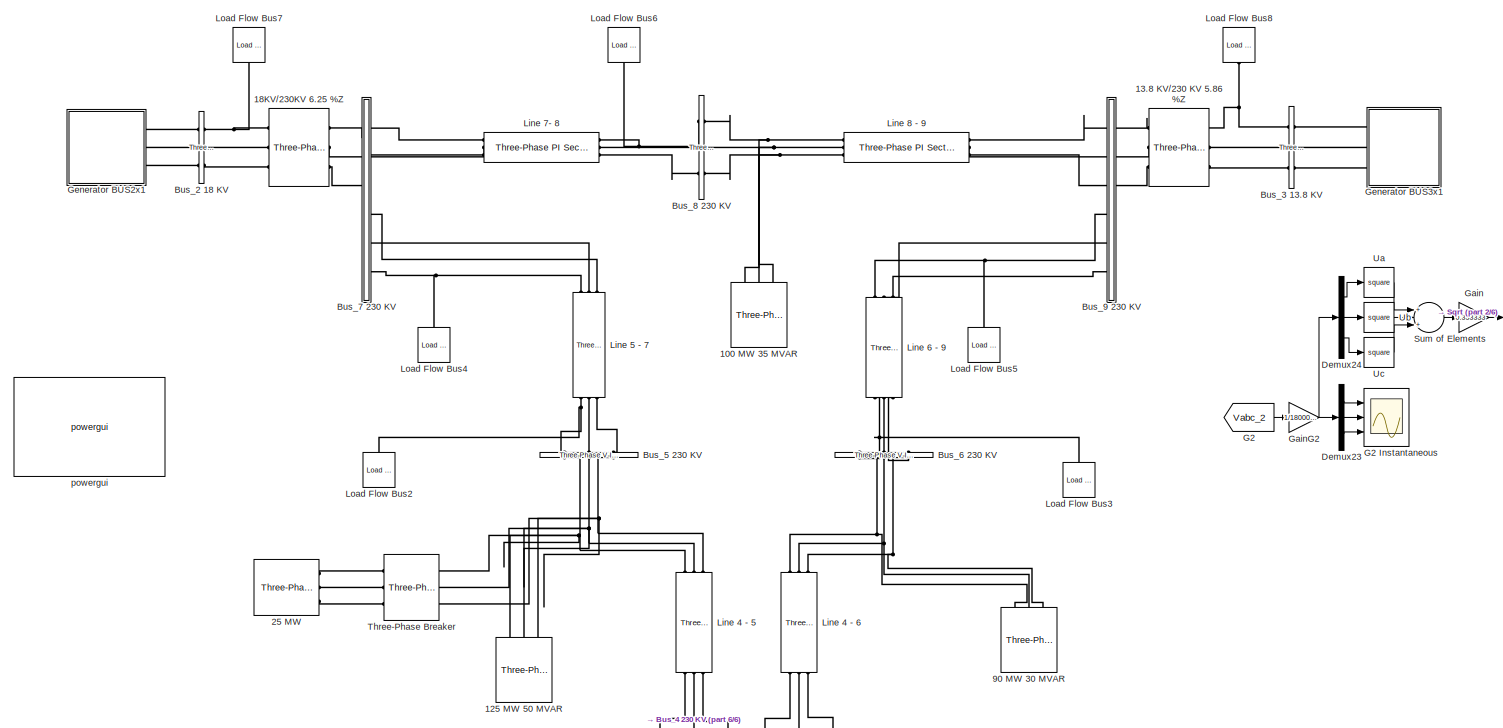
[diagram: root canvas - part 1/6, top left region]
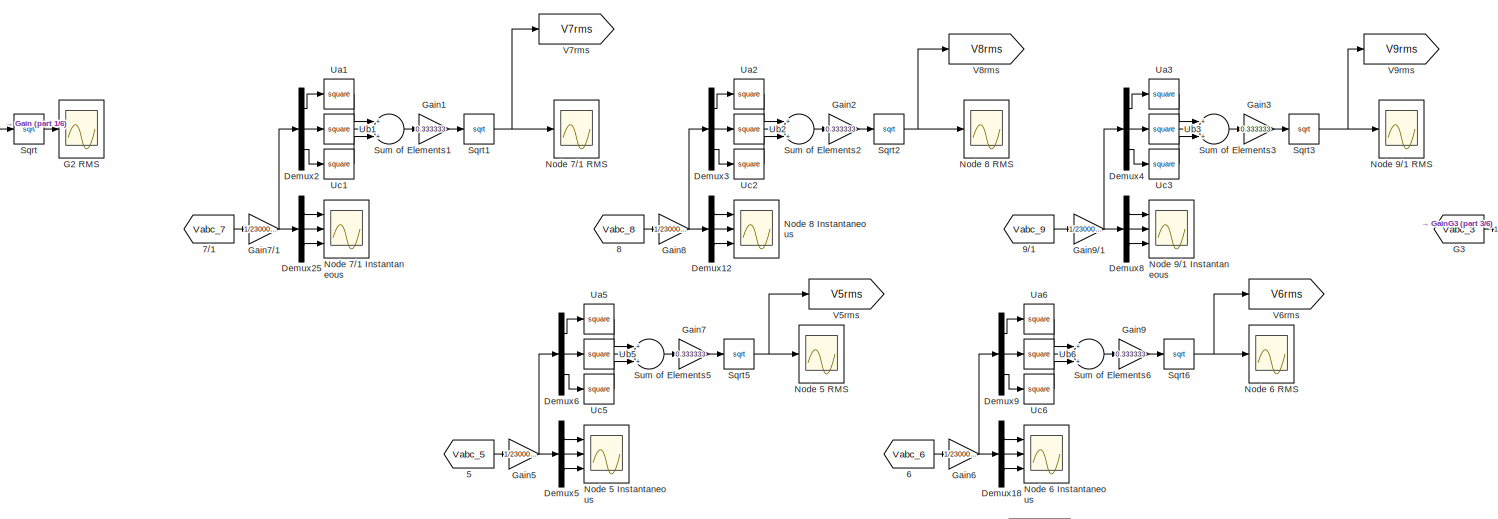
[diagram: root canvas - part 2/6, central region]
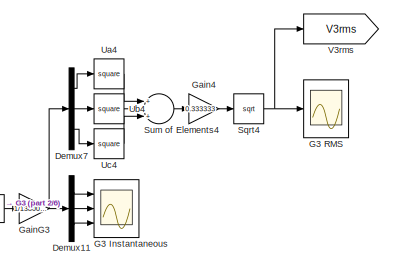
[diagram: root canvas - part 3/6, top right region]
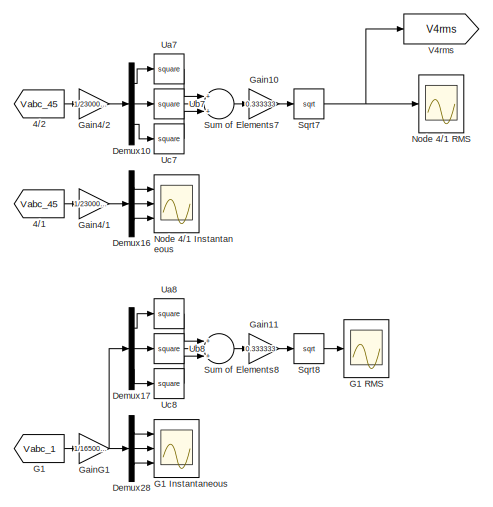
[diagram: root canvas - part 4/6, bottom right region]
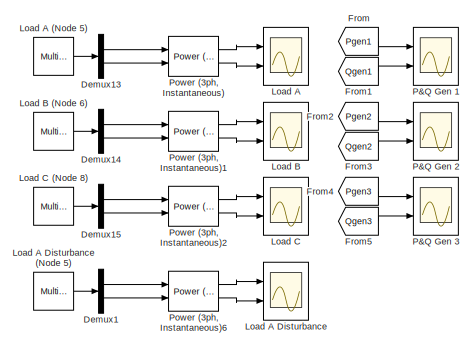
[diagram: root canvas - part 5/6, bottom left region]
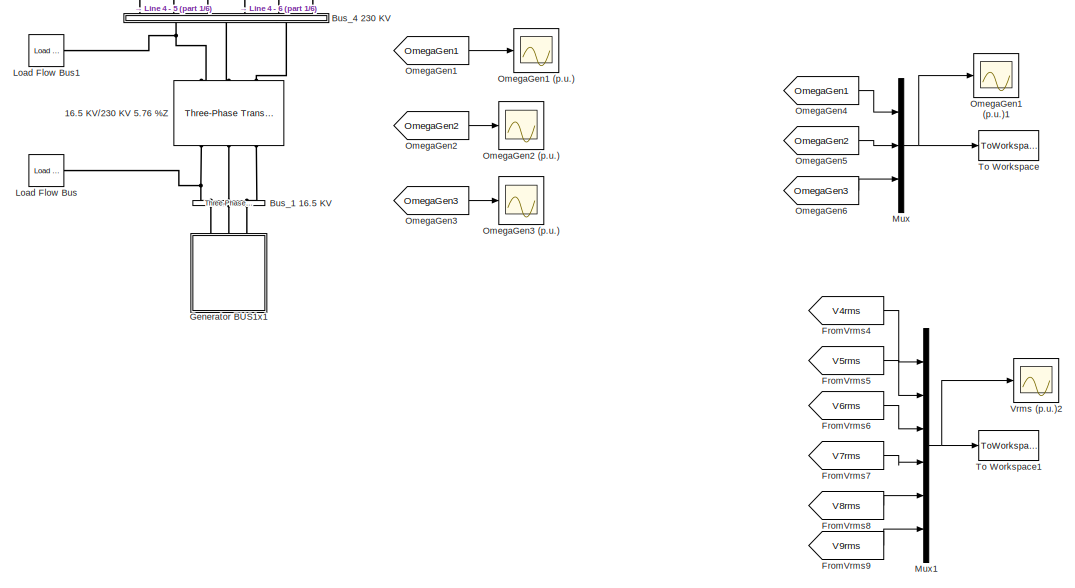
[diagram: root canvas - part 6/6, bottom left region]
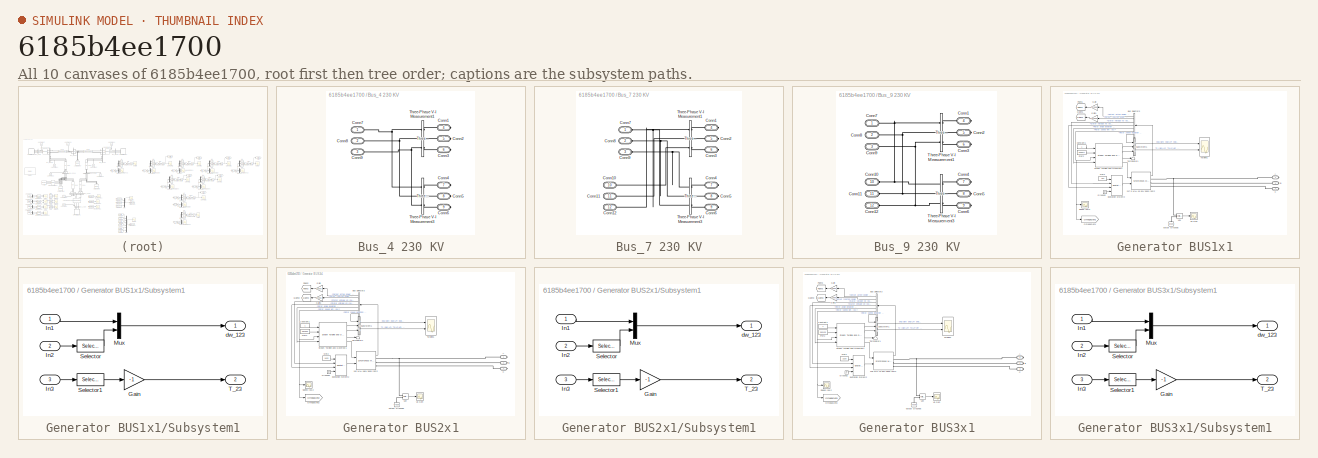
[diagram: thumbnail index - all 10 canvases of the model, root first then tree order]
MODEL slx_6185b4ee1700
KIND model
CONFIG InitFcn = Ts=50e-6;
BLOCK [Reference]  Line 4 - 6  REF=powerlib/Elements/Three-Phase
PI Section Line
  AttributesFormatString = \n
  Capacitances = [7.922e-9 4.74e-9]
  Frequency = 60
  Inductances = [ 1.29e-3  3.22e-3]
  LConnTagsString = a|b|c
  Length = 100
  Ports = [0, 0, 0, 0, 0, 3, 3]
  RConnTagsString = A|B|C
  Resistances = [ 0.08993 0.224825]
  SourceBlock = powerlib/Elements/Three-Phase\nPI Section Line
  SourceType = Three-Phase PI Section Line
BLOCK [Reference]  Line 6 - 9  REF=powerlib/Elements/Three-Phase
PI Section Line
  AttributesFormatString = \n
  Capacitances = [17.95e-9 10.55e-9]
  Frequency = 60
  Inductances = [ 2.38e-3  6.09e-3]
  LConnTagsString = a|b|c
  Length = 100
  Ports = [0, 0, 0, 0, 0, 3, 3]
  RConnTagsString = A|B|C
  Resistances = [ 0.20631 0.5157]
  SourceBlock = powerlib/Elements/Three-Phase\nPI Section Line
  SourceType = Three-Phase PI Section Line
BLOCK [Reference] 100 MW 35 MVAR  REF=powerlib/Elements/Three-Phase
Series RLC Load
  ActivePower = 100e6
  AttributesFormatString = \n
  CapacitivePower = 0
  Configuration = Y (grounded)
  InductivePower = 35e6
  LConnTagsString = A|B|C
  LoadType = constant PQ
  Measurements = Branch voltages and currents
  NominalFrequency = 60
  NominalVoltage = (230000)*1.01601
  Ports = [0, 0, 0, 0, 0, 3]
  SourceBlock = powerlib/Elements/Three-Phase\nSeries RLC Load
  SourceType = Three-Phase Series RLC Load
BLOCK [Reference] 125 MW 50 MVAR  REF=powerlib/Elements/Three-Phase
Series RLC Load
  ActivePower = 125e6
  AttributesFormatString = \n
  CapacitivePower = 0
  Configuration = Y (grounded)
  InductivePower = 50e6
  LConnTagsString = A|B|C
  LoadType = constant PQ
  Measurements = Branch voltages and currents
  NominalFrequency = 60
  NominalVoltage = (230000)*0.996126
  Ports = [0, 0, 0, 0, 0, 3]
  SourceBlock = powerlib/Elements/Three-Phase\nSeries RLC Load
  SourceType = Three-Phase Series RLC Load
BLOCK [Reference] 13.8 KV//230 KV 5.86 %Z  REF=powerlib/Elements/Three-Phase
Transformer
(Two Windings)
  BreakLoop = off
  DataFile = 'hysteresis'
  DataType = off
  Hysteresis = off
  InitialFluxes = [ 0.8 , -0.8 , 0.7 ]
  Lm = inf
  Measurements = None
  MoreParameters = off
  NominalPower = [ 128e6 , 60 ]
  Ports = [0, 0, 0, 0, 0, 3, 3]
  Rm = inf
  Saturation = [ 0,0 ; 0.0024,1.2 ; 1.0,1.52 ]
  SetInitialFlux = off
  SetSaturation = off
  SourceBlock = powerlib/Elements/Three-Phase\nTransformer\n(Two Windings)
  SourceType = Three-Phase Transformer (Two Windings)
  TransfoNumber = 1
  UNITS = pu
  Winding1 = [ 13.8e3 , 1e-6 , 0.0 ]
  Winding1Connection = Yg
  Winding2 = [ 230e3 , 1e-6, 0.075008 ]
  Winding2Connection = Yg
BLOCK [Reference] 16.5 KV//230 KV 5.76 %Z       REF=powerlib/Elements/Three-Phase
Transformer
(Two Windings)
  BreakLoop = off
  DataFile = 'hysteresis'
  DataType = off
  Hysteresis = off
  InitialFluxes = [ 0.8 , -0.8 , 0.7 ]
  Lm = inf
  Measurements = None
  MoreParameters = off
  NominalPower = [ 247.5e6 , 60 ]
  Ports = [0, 0, 0, 0, 0, 3, 3]
  Rm = inf
  Saturation = [ 0,0 ; 0.0024,1.2 ; 1.0,1.52 ]
  SetInitialFlux = off
  SetSaturation = off
  SourceBlock = powerlib/Elements/Three-Phase\nTransformer\n(Two Windings)
  SourceType = Three-Phase Transformer (Two Windings)
  TransfoNumber = 1
  UNITS = pu
  Winding1 = [ 16.5e3 , 1e-6, 0.0 ]
  Winding1Connection = Yg
  Winding2 = [ 230e3 ,1e-6, 0.14256 ]
  Winding2Connection = Yg
BLOCK [Reference] 18KV//230KV 6.25 %Z  REF=powerlib/Elements/Three-Phase
Transformer
(Two Windings)
  BreakLoop = off
  DataFile = 'hysteresis'
  DataType = off
  Hysteresis = off
  InitialFluxes = [ 0.8 , -0.8 , 0.7 ]
  Lm = inf
  Measurements = None
  MoreParameters = off
  NominalPower = [ 192e6 , 60 ]
  Ports = [0, 0, 0, 0, 0, 3, 3]
  Rm = inf
  Saturation = [ 0,0 ; 0.0024,1.2 ; 1.0,1.52 ]
  SetInitialFlux = off
  SetSaturation = off
  SourceBlock = powerlib/Elements/Three-Phase\nTransformer\n(Two Windings)
  SourceType = Three-Phase Transformer (Two Windings)
  TransfoNumber = 1
  UNITS = pu
  Winding1 = [ 18e3 , 1e-6 , 0.0 ]
  Winding1Connection = Yg
  Winding2 = [ 230e3 , 1e-6, 0.12 ]
  Winding2Connection = Yg
BLOCK [Reference] 25 MW  REF=powerlib/Elements/Three-Phase
Series RLC Load
  ActivePower = 25e6
  AttributesFormatString = \n
  CapacitivePower = 0
  Configuration = Y (grounded)
  InductivePower = 0
  LConnTagsString = A|B|C
  LoadType = constant PQ
  Measurements = Branch voltages and currents
  NominalFrequency = 60
  NominalVoltage = 230000
  Ports = [0, 0, 0, 0, 0, 3]
  SourceBlock = powerlib/Elements/Three-Phase\nSeries RLC Load
  SourceType = Three-Phase Series RLC Load
BLOCK [From] 4//1
  GotoTag = Vabc_45
  TagVisibility = global
BLOCK [From] 4//2
  GotoTag = Vabc_45
  TagVisibility = global
BLOCK [From] 5
  GotoTag = Vabc_5
  TagVisibility = global
BLOCK [From] 6
  GotoTag = Vabc_6
  TagVisibility = global
BLOCK [From] 7//1
  GotoTag = Vabc_7
  TagVisibility = global
BLOCK [From] 8
  GotoTag = Vabc_8
  TagVisibility = global
BLOCK [From] 9//1
  GotoTag = Vabc_9
  TagVisibility = global
BLOCK [Reference] 90 MW 30 MVAR  REF=powerlib/Elements/Three-Phase
Series RLC Load
  ActivePower = 90e6
  AttributesFormatString = \n
  CapacitivePower = 0
  Configuration = Y (grounded)
  InductivePower = 30e6
  LConnTagsString = A|B|C
  LoadType = constant PQ
  Measurements = Branch voltages and currents
  NominalFrequency = 60
  NominalVoltage = (230000)*1.01311
  Ports = [0, 0, 0, 0, 0, 3]
  SourceBlock = powerlib/Elements/Three-Phase\nSeries RLC Load
  SourceType = Three-Phase Series RLC Load
BLOCK [Reference] Bus_1 16.5 KV  REF=powerlib/Measurements/Three-Phase
V-I Measurement
  CurrentMeasurement = yes
  Ipu = off
  LabelI = Iabc_1
  LabelV = Vabc_1
  OutputType = Complex
  PSBequivalent = 0
  Pbase = 100e6
  PhasorSimulation = off
  Ports = [0, 0, 0, 0, 0, 3, 3]
  SetLabelI = on
  SetLabelV = on
  SourceBlock = powerlib/Measurements/Three-Phase\nV-I Measurement
  SourceType = Three-Phase VI Measurement
  Vbase = 16.5e3
  VoltageMeasurement = phase-to-phase
  Vpu = off
  VpuLL = off
BLOCK [Reference] Bus_2 18 KV  REF=powerlib/Measurements/Three-Phase
V-I Measurement
  CurrentMeasurement = yes
  Ipu = off
  LabelI = Iabc_2
  LabelV = Vabc_2
  OutputType = Complex
  PSBequivalent = 0
  Pbase = 100e6
  PhasorSimulation = off
  Ports = [0, 0, 0, 0, 0, 3, 3]
  SetLabelI = on
  SetLabelV = on
  SourceBlock = powerlib/Measurements/Three-Phase\nV-I Measurement
  SourceType = Three-Phase VI Measurement
  Vbase = 18e3
  VoltageMeasurement = phase-to-phase
  Vpu = off
  VpuLL = off
BLOCK [Reference] Bus_3 13.8 KV  REF=powerlib/Measurements/Three-Phase
V-I Measurement
  CurrentMeasurement = yes
  Ipu = off
  LabelI = Iabc_3
  LabelV = Vabc_3
  OutputType = Complex
  PSBequivalent = 0
  Pbase = 100e6
  PhasorSimulation = off
  Ports = [0, 0, 0, 0, 0, 3, 3]
  SetLabelI = on
  SetLabelV = on
  SourceBlock = powerlib/Measurements/Three-Phase\nV-I Measurement
  SourceType = Three-Phase VI Measurement
  Vbase = 13.8e3
  VoltageMeasurement = phase-to-phase
  Vpu = off
  VpuLL = off
BLOCK [SubSystem] Bus_4 230 KV
  Ports = [0, 0, 0, 0, 0, 3, 6]
  RequestExecContextInheritance = off
BLOCK [PMIOPort] Bus_4 230 KV/Conn1
  Port = 4
  Side = Right
BLOCK [PMIOPort] Bus_4 230 KV/Conn2
  Port = 5
  Side = Right
BLOCK [PMIOPort] Bus_4 230 KV/Conn3
  Port = 6
  Side = Right
BLOCK [PMIOPort] Bus_4 230 KV/Conn4
  Port = 7
  Side = Right
BLOCK [PMIOPort] Bus_4 230 KV/Conn5
  Port = 8
  Side = Right
BLOCK [PMIOPort] Bus_4 230 KV/Conn6
  Port = 9
  Side = Right
BLOCK [PMIOPort] Bus_4 230 KV/Conn7
  Port = 1
  Side = Left
BLOCK [PMIOPort] Bus_4 230 KV/Conn8
  Port = 2
  Side = Left
BLOCK [PMIOPort] Bus_4 230 KV/Conn9
  Port = 3
  Side = Left
BLOCK [Reference] Bus_4 230 KV/Three-Phase V-I Measurement1  REF=powerlib/Measurements/Three-Phase
V-I Measurement
  CurrentMeasurement = yes
  Ipu = off
  LabelI = Iabc_45
  LabelV = Vabc_45
  OutputType = Complex
  PSBequivalent = 0
  Pbase = 100e6
  PhasorSimulation = off
  Ports = [0, 0, 0, 0, 0, 3, 3]
  SetLabelI = on
  SetLabelV = on
  SourceBlock = powerlib/Measurements/Three-Phase\nV-I Measurement
  SourceType = Three-Phase VI Measurement
  Vbase = 230e3
  VoltageMeasurement = phase-to-phase
  Vpu = off
  VpuLL = off
BLOCK [Reference] Bus_4 230 KV/Three-Phase V-I Measurement3  REF=powerlib/Measurements/Three-Phase
V-I Measurement
  CurrentMeasurement = yes
  Ipu = off
  LabelI = Iabc_46
  LabelV = Vabc_46
  OutputType = Complex
  PSBequivalent = 0
  Pbase = 100e6
  PhasorSimulation = off
  Ports = [0, 0, 0, 0, 0, 3, 3]
  SetLabelI = on
  SetLabelV = on
  SourceBlock = powerlib/Measurements/Three-Phase\nV-I Measurement
  SourceType = Three-Phase VI Measurement
  Vbase = 230e3
  VoltageMeasurement = phase-to-phase
  Vpu = off
  VpuLL = off
BLOCK [Reference] Bus_5 230 KV  REF=powerlib/Measurements/Three-Phase
V-I Measurement
  CurrentMeasurement = yes
  Ipu = off
  LabelI = Iabc_5
  LabelV = Vabc_5
  OutputType = Complex
  PSBequivalent = 0
  Pbase = 100e6
  PhasorSimulation = off
  Ports = [0, 0, 0, 0, 0, 3, 3]
  SetLabelI = on
  SetLabelV = on
  SourceBlock = powerlib/Measurements/Three-Phase\nV-I Measurement
  SourceType = Three-Phase VI Measurement
  Vbase = 230e3
  VoltageMeasurement = phase-to-phase
  Vpu = off
  VpuLL = off
BLOCK [Reference] Bus_6 230 KV  REF=powerlib/Measurements/Three-Phase
V-I Measurement
  CurrentMeasurement = yes
  Ipu = off
  LabelI = Iabc_6
  LabelV = Vabc_6
  OutputType = Complex
  PSBequivalent = 0
  Pbase = 100e6
  PhasorSimulation = off
  Ports = [0, 0, 0, 0, 0, 3, 3]
  SetLabelI = on
  SetLabelV = on
  SourceBlock = powerlib/Measurements/Three-Phase\nV-I Measurement
  SourceType = Three-Phase VI Measurement
  Vbase = 230e3
  VoltageMeasurement = phase-to-phase
  Vpu = off
  VpuLL = off
BLOCK [SubSystem] Bus_7 230 KV
  Ports = [0, 0, 0, 0, 0, 6, 6]
  RequestExecContextInheritance = off
BLOCK [PMIOPort] Bus_7 230 KV/Conn1
  Port = 4
  Side = Right
BLOCK [PMIOPort] Bus_7 230 KV/Conn10
  Port = 10
  Side = Left
BLOCK [PMIOPort] Bus_7 230 KV/Conn11
  Port = 11
  Side = Left
BLOCK [PMIOPort] Bus_7 230 KV/Conn12
  Port = 12
  Side = Left
BLOCK [PMIOPort] Bus_7 230 KV/Conn2
  Port = 5
  Side = Right
BLOCK [PMIOPort] Bus_7 230 KV/Conn3
  Port = 6
  Side = Right
BLOCK [PMIOPort] Bus_7 230 KV/Conn4
  Port = 7
  Side = Right
BLOCK [PMIOPort] Bus_7 230 KV/Conn5
  Port = 8
  Side = Right
BLOCK [PMIOPort] Bus_7 230 KV/Conn6
  Port = 9
  Side = Right
BLOCK [PMIOPort] Bus_7 230 KV/Conn7
  Port = 1
  Side = Left
BLOCK [PMIOPort] Bus_7 230 KV/Conn8
  Port = 2
  Side = Left
BLOCK [PMIOPort] Bus_7 230 KV/Conn9
  Port = 3
  Side = Left
BLOCK [Reference] Bus_7 230 KV/Three-Phase V-I Measurement1  REF=powerlib/Measurements/Three-Phase
V-I Measurement
  CurrentMeasurement = yes
  Ipu = off
  LabelI = Iabc_7
  LabelV = Vabc_7
  OutputType = Complex
  PSBequivalent = 0
  Pbase = 100e6
  PhasorSimulation = off
  Ports = [0, 0, 0, 0, 0, 3, 3]
  SetLabelI = on
  SetLabelV = on
  SourceBlock = powerlib/Measurements/Three-Phase\nV-I Measurement
  SourceType = Three-Phase VI Measurement
  Vbase = 230e3
  VoltageMeasurement = phase-to-phase
  Vpu = off
  VpuLL = off
BLOCK [Reference] Bus_7 230 KV/Three-Phase V-I Measurement3  REF=powerlib/Measurements/Three-Phase
V-I Measurement
  CurrentMeasurement = yes
  Ipu = off
  LabelI = Iab
  LabelV = Vabc
  OutputType = Complex
  PSBequivalent = 0
  Pbase = 100e6
  PhasorSimulation = off
  Ports = [0, 0, 0, 0, 0, 3, 3]
  SetLabelI = on
  SetLabelV = on
  SourceBlock = powerlib/Measurements/Three-Phase\nV-I Measurement
  SourceType = Three-Phase VI Measurement
  Vbase = 230e3
  VoltageMeasurement = phase-to-phase
  Vpu = off
  VpuLL = off
BLOCK [Reference] Bus_8 230 KV  REF=powerlib/Measurements/Three-Phase
V-I Measurement
  CurrentMeasurement = yes
  Ipu = off
  LabelI = Iabc_8
  LabelV = Vabc_8
  OutputType = Complex
  PSBequivalent = 0
  Pbase = 100e6
  PhasorSimulation = off
  Ports = [0, 0, 0, 0, 0, 3, 3]
  SetLabelI = on
  SetLabelV = on
  SourceBlock = powerlib/Measurements/Three-Phase\nV-I Measurement
  SourceType = Three-Phase VI Measurement
  Vbase = 230e3
  VoltageMeasurement = phase-to-phase
  Vpu = off
  VpuLL = off
BLOCK [SubSystem] Bus_9 230 KV
  Ports = [0, 0, 0, 0, 0, 6, 6]
  RequestExecContextInheritance = off
BLOCK [PMIOPort] Bus_9 230 KV/Conn1
  Port = 4
  Side = Right
BLOCK [PMIOPort] Bus_9 230 KV/Conn10
  Port = 10
  Side = Left
BLOCK [PMIOPort] Bus_9 230 KV/Conn11
  Port = 11
  Side = Left
BLOCK [PMIOPort] Bus_9 230 KV/Conn12
  Port = 12
  Side = Left
BLOCK [PMIOPort] Bus_9 230 KV/Conn2
  Port = 5
  Side = Right
BLOCK [PMIOPort] Bus_9 230 KV/Conn3
  Port = 6
  Side = Right
BLOCK [PMIOPort] Bus_9 230 KV/Conn4
  Port = 7
  Side = Right
BLOCK [PMIOPort] Bus_9 230 KV/Conn5
  Port = 8
  Side = Right
BLOCK [PMIOPort] Bus_9 230 KV/Conn6
  Port = 9
  Side = Right
BLOCK [PMIOPort] Bus_9 230 KV/Conn7
  Port = 1
  Side = Left
BLOCK [PMIOPort] Bus_9 230 KV/Conn8
  Port = 2
  Side = Left
BLOCK [PMIOPort] Bus_9 230 KV/Conn9
  Port = 3
  Side = Left
BLOCK [Reference] Bus_9 230 KV/Three-Phase V-I Measurement1  REF=powerlib/Measurements/Three-Phase
V-I Measurement
  CurrentMeasurement = yes
  Ipu = off
  LabelI = Iabc_9
  LabelV = Vabc_9
  OutputType = Complex
  PSBequivalent = 0
  Pbase = 100e6
  PhasorSimulation = off
  Ports = [0, 0, 0, 0, 0, 3, 3]
  SetLabelI = on
  SetLabelV = on
  SourceBlock = powerlib/Measurements/Three-Phase\nV-I Measurement
  SourceType = Three-Phase VI Measurement
  Vbase = 230e3
  VoltageMeasurement = phase-to-phase
  Vpu = off
  VpuLL = off
BLOCK [Reference] Bus_9 230 KV/Three-Phase V-I Measurement3  REF=powerlib/Measurements/Three-Phase
V-I Measurement
  CurrentMeasurement = yes
  Ipu = off
  LabelI = Iabc
  LabelV = Vabc_10
  OutputType = Complex
  PSBequivalent = 0
  Pbase = 100e6
  PhasorSimulation = off
  Ports = [0, 0, 0, 0, 0, 3, 3]
  SetLabelI = on
  SetLabelV = on
  SourceBlock = powerlib/Measurements/Three-Phase\nV-I Measurement
  SourceType = Three-Phase VI Measurement
  Vbase = 230e3
  VoltageMeasurement = phase-to-phase
  Vpu = off
  VpuLL = off
BLOCK [Demux] Demux1
  DisplayOption = bar
  Outputs = 2
  Ports = [1, 2]
BLOCK [Demux] Demux10
  DisplayOption = bar
  Outputs = 3
  Ports = [1, 3]
BLOCK [Demux] Demux11
  DisplayOption = bar
  Outputs = 3
  Ports = [1, 3]
BLOCK [Demux] Demux12
  DisplayOption = bar
  Outputs = 3
  Ports = [1, 3]
BLOCK [Demux] Demux13
  DisplayOption = bar
  Outputs = 2
  Ports = [1, 2]
BLOCK [Demux] Demux14
  DisplayOption = bar
  Outputs = 2
  Ports = [1, 2]
BLOCK [Demux] Demux15
  DisplayOption = bar
  Outputs = 2
  Ports = [1, 2]
BLOCK [Demux] Demux16
  DisplayOption = bar
  Outputs = 3
  Ports = [1, 3]
BLOCK [Demux] Demux17
  DisplayOption = bar
  Outputs = 3
  Ports = [1, 3]
BLOCK [Demux] Demux18
  DisplayOption = bar
  Outputs = 3
  Ports = [1, 3]
BLOCK [Demux] Demux2
  DisplayOption = bar
  Outputs = 3
  Ports = [1, 3]
BLOCK [Demux] Demux23
  DisplayOption = bar
  Outputs = 3
  Ports = [1, 3]
BLOCK [Demux] Demux24
  DisplayOption = bar
  Outputs = 3
  Ports = [1, 3]
BLOCK [Demux] Demux25
  DisplayOption = bar
  Outputs = 3
  Ports = [1, 3]
BLOCK [Demux] Demux28
  DisplayOption = bar
  Outputs = 3
  Ports = [1, 3]
BLOCK [Demux] Demux3
  DisplayOption = bar
  Outputs = 3
  Ports = [1, 3]
BLOCK [Demux] Demux4
  DisplayOption = bar
  Outputs = 3
  Ports = [1, 3]
BLOCK [Demux] Demux5
  DisplayOption = bar
  Outputs = 3
  Ports = [1, 3]
BLOCK [Demux] Demux6
  DisplayOption = bar
  Outputs = 3
  Ports = [1, 3]
BLOCK [Demux] Demux7
  DisplayOption = bar
  Outputs = 3
  Ports = [1, 3]
BLOCK [Demux] Demux8
  DisplayOption = bar
  Outputs = 3
  Ports = [1, 3]
BLOCK [Demux] Demux9
  DisplayOption = bar
  Outputs = 3
  Ports = [1, 3]
BLOCK [From] From
  GotoTag = Pgen1
  TagVisibility = global
BLOCK [From] From1
  GotoTag = Qgen1
  TagVisibility = global
BLOCK [From] From2
  GotoTag = Pgen2
  TagVisibility = global
BLOCK [From] From3
  GotoTag = Qgen2
  TagVisibility = global
BLOCK [From] From4
  GotoTag = Pgen3
  TagVisibility = global
BLOCK [From] From5
  GotoTag = Qgen3
  TagVisibility = global
BLOCK [From] FromVrms4
  GotoTag = V4rms
  TagVisibility = global
BLOCK [From] FromVrms5
  GotoTag = V5rms
  TagVisibility = global
BLOCK [From] FromVrms6
  GotoTag = V6rms
  TagVisibility = global
BLOCK [From] FromVrms7
  GotoTag = V7rms
  TagVisibility = global
BLOCK [From] FromVrms8
  GotoTag = V8rms
  TagVisibility = global
BLOCK [From] FromVrms9
  GotoTag = V9rms
  TagVisibility = global
BLOCK [From] G1
  GotoTag = Vabc_1
  TagVisibility = global
BLOCK [Scope] G1 Instantaneous
  Floating = off
  LimitDataPoints = off
  NumInputPorts = 3
  Ports = [3]
  SaveName = ScopeData31
  ShowLegends = off
  YMax = 1.5~1.5~1.5
  YMin = -1.5~-1.5~-1.5
  ZoomMode = yonly
BLOCK [Scope] G1 RMS
  Decimation = 10
  Floating = off
  LimitDataPoints = off
  NumInputPorts = 1
  Ports = [1]
  SaveName = ScopeData32
  ShowLegends = off
  YMax = 1.045
  YMin = 1.015
  ZoomMode = yonly
BLOCK [From] G2
  GotoTag = Vabc_2
  TagVisibility = global
BLOCK [Scope] G2 Instantaneous
  Floating = off
  LimitDataPoints = off
  NumInputPorts = 3
  Ports = [3]
  SaveName = ScopeData26
  ShowLegends = off
  YMax = 1.5~1.5~1.5
  YMin = -1.5~-1.5~-1.5
  ZoomMode = yonly
BLOCK [Scope] G2 RMS
  Decimation = 10
  Floating = off
  LimitDataPoints = off
  NumInputPorts = 1
  Ports = [1]
  SaveName = ScopeData29
  ShowLegends = off
  YMax = 1.0262
  YMin = 1.0246
  ZoomMode = yonly
BLOCK [From] G3
  GotoTag = Vabc_3
  TagVisibility = global
BLOCK [Scope] G3 Instantaneous
  Floating = off
  LimitDataPoints = off
  NumInputPorts = 3
  Ports = [3]
  SaveName = ScopeData10
  ShowLegends = off
  YMax = 1.5~1.5~1.5
  YMin = -1.5~-1.5~-1.5
  ZoomMode = yonly
BLOCK [Scope] G3 RMS
  Decimation = 10
  Floating = off
  LimitDataPoints = off
  NumInputPorts = 1
  Ports = [1]
  SaveName = ScopeData30
  ShowLegends = off
  YMax = 1.0256
  YMin = 1.0248
  ZoomMode = yonly
BLOCK [Gain] Gain
  Gain = 0.333333
  OutDataTypeStr = Inherit: Inherit via internal rule
  ParamDataTypeStr = Inherit: Inherit via internal rule
  SaturateOnIntegerOverflow = off
BLOCK [Gain] Gain1
  Gain = 0.333333
  OutDataTypeStr = Inherit: Inherit via internal rule
  ParamDataTypeStr = Inherit: Inherit via internal rule
  SaturateOnIntegerOverflow = off
BLOCK [Gain] Gain10
  Gain = 0.333333
  OutDataTypeStr = Inherit: Inherit via internal rule
  ParamDataTypeStr = Inherit: Inherit via internal rule
  SaturateOnIntegerOverflow = off
BLOCK [Gain] Gain11
  Gain = 0.333333
  OutDataTypeStr = Inherit: Inherit via internal rule
  ParamDataTypeStr = Inherit: Inherit via internal rule
  SaturateOnIntegerOverflow = off
BLOCK [Gain] Gain2
  Gain = 0.333333
  OutDataTypeStr = Inherit: Inherit via internal rule
  ParamDataTypeStr = Inherit: Inherit via internal rule
  SaturateOnIntegerOverflow = off
BLOCK [Gain] Gain3
  Gain = 0.333333
  OutDataTypeStr = Inherit: Inherit via internal rule
  ParamDataTypeStr = Inherit: Inherit via internal rule
  SaturateOnIntegerOverflow = off
BLOCK [Gain] Gain4
  Gain = 0.333333
  OutDataTypeStr = Inherit: Inherit via internal rule
  ParamDataTypeStr = Inherit: Inherit via internal rule
  SaturateOnIntegerOverflow = off
BLOCK [Gain] Gain4//1
  Gain = 1/230000.0
  OutDataTypeStr = Inherit: Inherit via internal rule
  ParamDataTypeStr = Inherit: Inherit via internal rule
  SaturateOnIntegerOverflow = off
BLOCK [Gain] Gain4//2
  Gain = 1/230000.0
  OutDataTypeStr = Inherit: Inherit via internal rule
  ParamDataTypeStr = Inherit: Inherit via internal rule
  SaturateOnIntegerOverflow = off
BLOCK [Gain] Gain5
  Gain = 1/230000.0
  OutDataTypeStr = Inherit: Inherit via internal rule
  ParamDataTypeStr = Inherit: Inherit via internal rule
  SaturateOnIntegerOverflow = off
BLOCK [Gain] Gain6
  Gain = 1/230000.0
  OutDataTypeStr = Inherit: Inherit via internal rule
  ParamDataTypeStr = Inherit: Inherit via internal rule
  SaturateOnIntegerOverflow = off
BLOCK [Gain] Gain7
  Gain = 0.333333
  OutDataTypeStr = Inherit: Inherit via internal rule
  ParamDataTypeStr = Inherit: Inherit via internal rule
  SaturateOnIntegerOverflow = off
BLOCK [Gain] Gain7//1
  Gain = 1/230000.0
  OutDataTypeStr = Inherit: Inherit via internal rule
  ParamDataTypeStr = Inherit: Inherit via internal rule
  SaturateOnIntegerOverflow = off
BLOCK [Gain] Gain8
  Gain = 1/230000.0
  OutDataTypeStr = Inherit: Inherit via internal rule
  ParamDataTypeStr = Inherit: Inherit via internal rule
  SaturateOnIntegerOverflow = off
BLOCK [Gain] Gain9
  Gain = 0.333333
  OutDataTypeStr = Inherit: Inherit via internal rule
  ParamDataTypeStr = Inherit: Inherit via internal rule
  SaturateOnIntegerOverflow = off
BLOCK [Gain] Gain9//1
  Gain = 1/230000.0
  OutDataTypeStr = Inherit: Inherit via internal rule
  ParamDataTypeStr = Inherit: Inherit via internal rule
  SaturateOnIntegerOverflow = off
BLOCK [Gain] GainG1
  Gain = 1/16500.0
  OutDataTypeStr = Inherit: Inherit via internal rule
  ParamDataTypeStr = Inherit: Inherit via internal rule
  SaturateOnIntegerOverflow = off
BLOCK [Gain] GainG2
  Gain = 1/18000.0
  OutDataTypeStr = Inherit: Inherit via internal rule
  ParamDataTypeStr = Inherit: Inherit via internal rule
  SaturateOnIntegerOverflow = off
BLOCK [Gain] GainG3
  Gain = 1/13800.0
  OutDataTypeStr = Inherit: Inherit via internal rule
  ParamDataTypeStr = Inherit: Inherit via internal rule
  SaturateOnIntegerOverflow = off
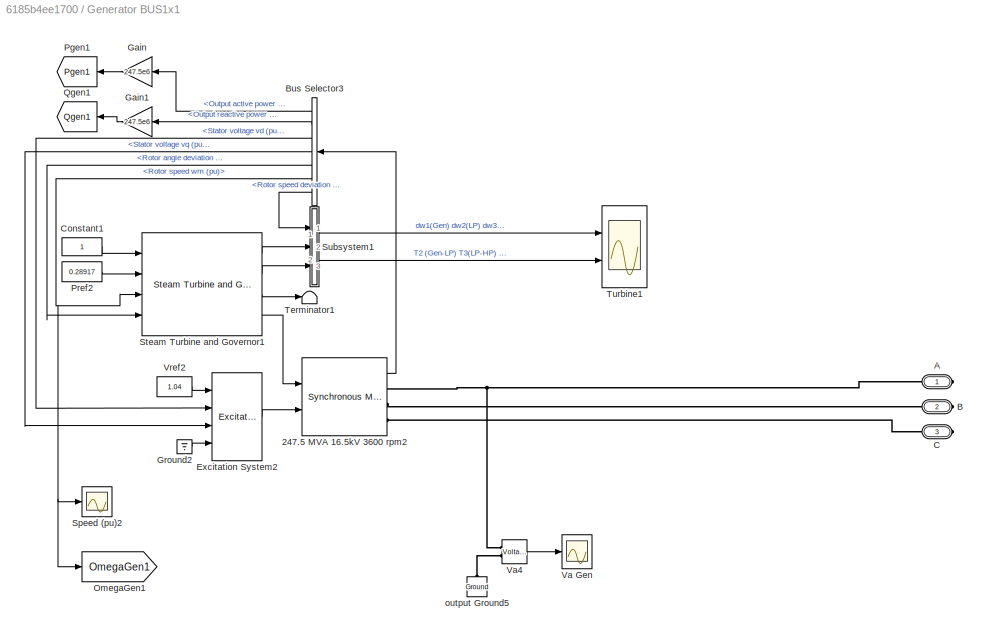
BLOCK [SubSystem] Generator BUS1x1
  Ports = [0, 0, 0, 0, 0, 0, 3]
  RequestExecContextInheritance = off
BLOCK [Scope] Generator BUS1x1/ Speed (pu)2
  DataFormat = StructureWithTime
  Floating = off
  LimitDataPoints = off
  NumInputPorts = 1
  Ports = [1]
  SampleTime = 0
  SaveName = Gen1Freq
  SaveToWorkspace = on
  ShowLegends = off
  TickLabels = on
  TimeRange = 100
  YMax = 1
  YMin = 0.995
BLOCK [Reference] Generator BUS1x1/247.5 MVA 16.5kV 3600 rpm2  REF=powerlib/Machines/Synchronous Machine
pu Standard
  BusType = swing
  InitialConditions = [0 -86.3058 0.296671 0.296671 0.296671 -20.4087 -140.409 99.5913 1.08165]
  IterativeModel = Trapezoidal non iterative
  LoadFlowParameters = [2 71600000 0 0 0]
  MeasurementBus = off
  Mechanical = [ 23.64  0 1 ]
  MechanicalLoad = Mechanical power Pm
  NominalParameters = [ 247.5e6  16.5e3   60 ]
  PLF = 0
  PolePairs = 1
  Ports = [2, 1, 0, 0, 0, 0, 3]
  Pref = 0
  PresetModel = No
  QLF = 0
  Qmax = Inf
  Qmin = -Inf
  Qref = 0
  Reactances1 = [ 0.36135, 0.15048, 0.12375, 0.2475, 0.2398275, 0.12375, 0.08316 ]
  Reactances2 = [ 1.305, 0.296, 0.252, 0.474,  0.243,  0.18 ]
  RotorType = Round
  Saturation = [0.6404,0.7127,0.8441,0.9214,0.9956,1.082,1.19,1.316,1.457;0.7,0.7698,0.8872,0.9466,0.9969,1.046,1.1,1.151,1.201]
  SetSaturation = off
  ShowDetailedParameters = on
  SourceBlock = powerlib/Machines/Synchronous Machine\npu Standard
  SourceType = Synchronous Machine
  StatorResistance = 0.000125
  TimeConstants1 = [ 4.4849  0.0681  0.1  ]
  TimeConstants2 = [ 8.96, 0.05,  0.31, 0.05 ]
  TimeConstants3 = [  4.49  0.0681  0.0513  ]
  TimeConstants4 = [ 8.0, 0.03, 0.3371, 0.0295 ]
  TimeConstants5 = [ 1.01, 0.053, 0.1 ]
  TimeConstants6 = [ 1.3201, 0.023, 1.0, 0.07 ]
  TimeConstants7 = [  1.01  0.053  0.051266  ]
  TimeConstants8 = [ 1.3201, 0.0231, 0.3371, 0.0295 ]
  TsBlock = -1
  TsPowergui = 0
  Units = per unit standard parameters
  dAxisTimeConstants = Open-circuit
  qAxisTimeConstants = Open-circuit
BLOCK [PMIOPort] Generator BUS1x1/A
  Port = 1
  Side = Right
BLOCK [PMIOPort] Generator BUS1x1/B
  Port = 2
  Side = Right
BLOCK [BusSelector] Generator BUS1x1/Bus Selector3
  OutputSignals = Output active power   Peo (pu),Output reactive power  Qeo (pu),dq0 components.Stator voltage  vd (pu),dq0 components.Stator voltage  vq (pu),Mechanical.Rotor angle deviation  d_theta (rad),Mechanical.Rotor speed  wm  (pu),Mechanical.Rotor speed deviation  dw (pu)  <repeated x3 — deduplicated; at blocks: Bus Selector3>
  Ports = [1, 7]
BLOCK [PMIOPort] Generator BUS1x1/C
  Port = 3
  Side = Right
BLOCK [Constant] Generator BUS1x1/Constant1
BLOCK [Reference] Generator BUS1x1/Excitation System2  REF=sps_avr/Excitation System
  Ports = [4, 1]
  SourceBlock = sps_avr/Excitation System
  SourceType = Excitation System
  damp = [ 0.03, 1.0 ]
  exc = [ 1, 0 ]
  lim = [ -10.0, 10.0, 0 ]
  reg = [ 200, 0.02 ]
  sat = [ 0, 0 ]
  tgr = [ 12.0, 1.0 ]
  tr = 20e-3
  v0 = [1.04 1.0817]
BLOCK [Gain] Generator BUS1x1/Gain
  Gain = 247.5e6
  OutDataTypeStr = Inherit: Inherit via internal rule
  ParamDataTypeStr = Inherit: Inherit via internal rule
  SaturateOnIntegerOverflow = off
BLOCK [Gain] Generator BUS1x1/Gain1
  Gain = 247.5e6
  OutDataTypeStr = Inherit: Inherit via internal rule
  ParamDataTypeStr = Inherit: Inherit via internal rule
  SaturateOnIntegerOverflow = off
BLOCK [Ground] Generator BUS1x1/Ground2
BLOCK [Goto] Generator BUS1x1/OmegaGen1
  GotoTag = OmegaGen1
  TagVisibility = global
BLOCK [Goto] Generator BUS1x1/Pgen1
  GotoTag = Pgen1
  TagVisibility = global
BLOCK [Constant] Generator BUS1x1/Pref2
  Value = 0.28917
BLOCK [Goto] Generator BUS1x1/Qgen1
  GotoTag = Qgen1
  TagVisibility = global
BLOCK [Reference] Generator BUS1x1/Steam Turbine and Governor1  REF=powerlib/Machines/Steam Turbine
and Governor
  DA = [  0.3104  0.05  0  0 ]*8
  HA = [  1.5498   0.24894  0  0 ]
  KA = [  83.47  42.702  0  0 ]
  N = 3600
  Ports = [4, 4]
  SourceBlock = powerlib/Machines/Steam Turbine\nand Governor
  SourceType = Steam Turbine and Governor
  gentype = Tandem-compound (single mass)
  ini1 = 0.28918
  ini2 = [1.88924e-008,-120.067]
  reg1 = [ 1  0.05    0 ]
  reg2 = [ 0.001  0.1 ]
  reg3 = [ -10.0 0.1   0.1 1.0 ]
  turb1 = [ 0.12  0.13  10.0   0.32   ]
  turb2 = [ 0.48   0.25   0  0.27 ]
BLOCK [SubSystem] Generator BUS1x1/Subsystem1
  Ports = [3, 2]
  RequestExecContextInheritance = off
BLOCK [Gain] Generator BUS1x1/Subsystem1/Gain
  Gain = -1
BLOCK [Inport] Generator BUS1x1/Subsystem1/In1
  IconDisplay = Port number
BLOCK [Inport] Generator BUS1x1/Subsystem1/In2
  IconDisplay = Port number
  Port = 2
BLOCK [Inport] Generator BUS1x1/Subsystem1/In3
  IconDisplay = Port number
  Port = 3
BLOCK [Mux] Generator BUS1x1/Subsystem1/Mux
  DisplayOption = bar
  Inputs = 2
  Ports = [2, 1]
BLOCK [Selector] Generator BUS1x1/Subsystem1/Selector
  Indices = [4 3]
  InputPortWidth = 4
  Ports = [1, 1]
BLOCK [Selector] Generator BUS1x1/Subsystem1/Selector1
  Indices = [4 3]
  InputPortWidth = 4
  Ports = [1, 1]
BLOCK [Outport] Generator BUS1x1/Subsystem1/T_23
  IconDisplay = Port number
  Port = 2
BLOCK [Outport] Generator BUS1x1/Subsystem1/dw_123
  IconDisplay = Port number
BLOCK [Terminator] Generator BUS1x1/Terminator1
BLOCK [Scope] Generator BUS1x1/Turbine1
  DataFormat = StructureWithTime
  Floating = off
  LimitDataPoints = off
  NumInputPorts = 2
  Ports = [2]
  SampleTime = 0
  SaveName = ScopeData2
  ShowLegends = off
  TimeRange = 0.5
  YMax = 3e+09~1
  YMin = 0~-1
  ZoomMode = yonly
BLOCK [Scope] Generator BUS1x1/Va Gen
  Floating = off
  LimitDataPoints = off
  NumInputPorts = 1
  Ports = [1]
  SampleTime = 0
  SaveName = vf4
  ShowLegends = off
  TickLabels = on
  TimeRange = 2
  YMax = 15000
  YMin = -15000
BLOCK [Reference] Generator BUS1x1/Va4  REF=powerlib/Measurements/Voltage Measurement
  AttributesFormatString = \n
  OutputType = Magnitude
  PSBequivalent = 0
  PhasorSimulation = off
  Ports = [0, 1, 0, 0, 0, 2]
  SourceBlock = powerlib/Measurements/Voltage Measurement
  SourceType = Voltage Measurement
  Tag = PoWeRsYsTeMmEaSuReMeNt
BLOCK [Constant] Generator BUS1x1/Vref2
  Value = 1.04
BLOCK [Reference] Generator BUS1x1/output Ground5  REF=powerlib/Elements/Ground
  AttributesFormatString = \n
  LConnTagsString = a
  Ports = [0, 0, 0, 0, 0, 1]
  SourceBlock = powerlib/Elements/Ground
  SourceType = Ground
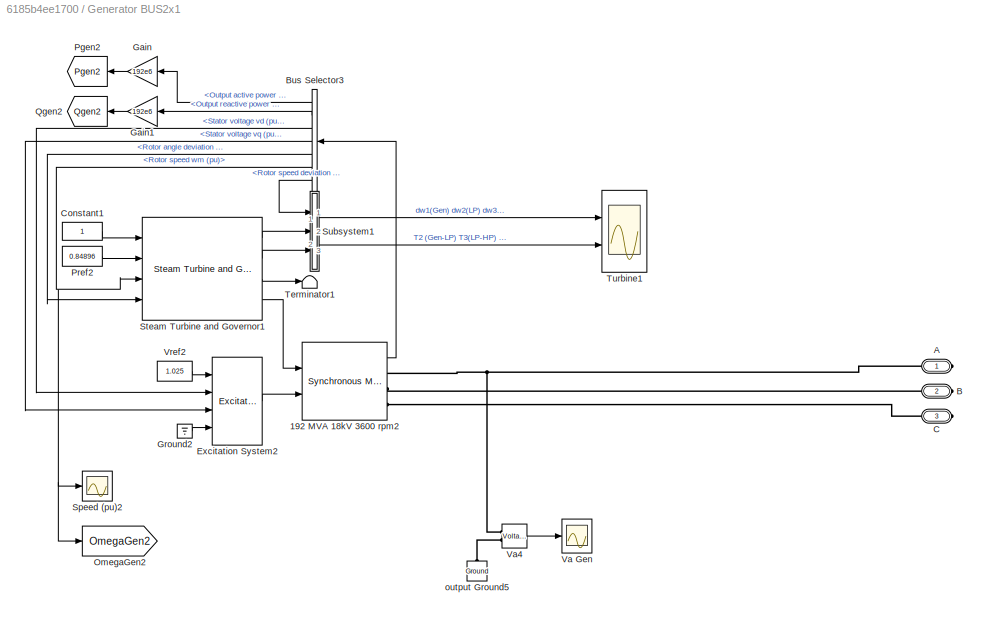
BLOCK [SubSystem] Generator BUS2x1
  Ports = [0, 0, 0, 0, 0, 0, 3]
  RequestExecContextInheritance = off
BLOCK [Scope] Generator BUS2x1/ Speed (pu)2
  Floating = off
  LimitDataPoints = off
  NumInputPorts = 1
  Ports = [1]
  SampleTime = 0
  SaveName = Pm2
  ShowLegends = off
  TickLabels = on
  TimeRange = 150
  YMax = 1
  YMin = 0.995
  ZoomMode = yonly
BLOCK [Reference] Generator BUS2x1/192 MVA 18kV 3600 rpm2  REF=powerlib/Machines/Synchronous Machine
pu Standard
  BusType = PV
  InitialConditions = [0 -28.9349 0.828916 0.828916 0.828916 6.92884 -113.071 126.929 1.78871]
  IterativeModel = Trapezoidal non iterative
  LoadFlowParameters = [1 163000000 0 0 0]
  MeasurementBus = off
  Mechanical = [ 6.4  0 1 ]
  MechanicalLoad = Mechanical power Pm
  NominalParameters = [ 192e6  18e3   60 ]
  PLF = 0
  PolePairs = 1
  Ports = [2, 1, 0, 0, 0, 0, 3]
  Pref = 163e6
  PresetModel = No
  QLF = 0
  Qmax = Inf
  Qmin = -Inf
  Qref = 0
  Reactances1 = [ 1.719936, 0.230016, 0.1632, 1.65984, 0.378048, 0.2304, 0.10002 ]
  Reactances2 = [ 1.305, 0.296, 0.252, 0.474,  0.243,  0.18 ]
  RotorType = Round
  Saturation = [0.6404,0.7127,0.8441,0.9214,0.9956,1.082,1.19,1.316,1.457;0.7,0.7698,0.8872,0.9466,0.9969,1.046,1.1,1.151,1.201]
  SetSaturation = off
  ShowDetailedParameters = on
  SourceBlock = powerlib/Machines/Synchronous Machine\npu Standard
  SourceType = Synchronous Machine
  StatorResistance = 0.000125
  TimeConstants1 = [ 4.4849  0.0681  0.1  ]
  TimeConstants2 = [ 6.0, 0.05,  0.535, 0.05 ]
  TimeConstants3 = [  4.49  0.0681  0.0513  ]
  TimeConstants4 = [ 8.0, 0.03, 0.3371, 0.0295 ]
  TimeConstants5 = [ 1.01, 0.053, 0.1 ]
  TimeConstants6 = [ 1.3201, 0.023, 1.0, 0.07 ]
  TimeConstants7 = [  1.01  0.053  0.051266  ]
  TimeConstants8 = [ 1.3201, 0.0231, 0.3371, 0.0295 ]
  TsBlock = -1
  TsPowergui = 0
  Units = per unit standard parameters
  dAxisTimeConstants = Open-circuit
  qAxisTimeConstants = Open-circuit
BLOCK [PMIOPort] Generator BUS2x1/A
  Port = 1
  Side = Right
BLOCK [PMIOPort] Generator BUS2x1/B
  Port = 2
  Side = Right
BLOCK [BusSelector] Generator BUS2x1/Bus Selector3
  Ports = [1, 7]
BLOCK [PMIOPort] Generator BUS2x1/C
  Port = 3
  Side = Right
BLOCK [Constant] Generator BUS2x1/Constant1
BLOCK [Reference] Generator BUS2x1/Excitation System2  REF=sps_avr/Excitation System
  Ports = [4, 1]
  SourceBlock = sps_avr/Excitation System
  SourceType = Excitation System
  damp = [ 0.03, 1.0 ]
  exc = [ 1, 0 ]
  lim = [ -10.0, 10.0, 0 ]
  reg = [ 200, 0.02 ]
  sat = [ 0, 0 ]
  tgr = [ 12.0, 1.0 ]
  tr = 20e-3
  v0 = [1.025 1.7887]
BLOCK [Gain] Generator BUS2x1/Gain
  Gain = 192e6
  OutDataTypeStr = Inherit: Inherit via internal rule
  ParamDataTypeStr = Inherit: Inherit via internal rule
  SaturateOnIntegerOverflow = off
BLOCK [Gain] Generator BUS2x1/Gain1
  Gain = 192e6
  OutDataTypeStr = Inherit: Inherit via internal rule
  ParamDataTypeStr = Inherit: Inherit via internal rule
  SaturateOnIntegerOverflow = off
BLOCK [Ground] Generator BUS2x1/Ground2
BLOCK [Goto] Generator BUS2x1/OmegaGen2
  GotoTag = OmegaGen2
  TagVisibility = global
BLOCK [Goto] Generator BUS2x1/Pgen2
  GotoTag = Pgen2
  TagVisibility = global
BLOCK [Constant] Generator BUS2x1/Pref2
  Value = 0.84896
BLOCK [Goto] Generator BUS2x1/Qgen2
  GotoTag = Qgen2
  TagVisibility = global
BLOCK [Reference] Generator BUS2x1/Steam Turbine and Governor1  REF=powerlib/Machines/Steam Turbine
and Governor
  DA = [  0.3104  0.05  0  0 ]*8
  HA = [  1.5498   0.24894  0  0 ]
  KA = [  83.47  42.702  0  0 ]
  N = 3600
  Ports = [4, 4]
  SourceBlock = powerlib/Machines/Steam Turbine\nand Governor
  SourceType = Steam Turbine and Governor
  gentype = Tandem-compound (single mass)
  ini1 = 0.84904
  ini2 = [1.88924e-008,-120.067]
  reg1 = [ 1  0.05    0 ]
  reg2 = [ 0.001  0.1 ]
  reg3 = [ -10.0 0.1   0.1 1.0 ]
  turb1 = [ 0.12  0.13  10.0   0.32   ]
  turb2 = [ 0.48   0.25   0  0.27 ]
BLOCK [SubSystem] Generator BUS2x1/Subsystem1
  Ports = [3, 2]
  RequestExecContextInheritance = off
BLOCK [Gain] Generator BUS2x1/Subsystem1/Gain
  Gain = -1
BLOCK [Inport] Generator BUS2x1/Subsystem1/In1
  IconDisplay = Port number
BLOCK [Inport] Generator BUS2x1/Subsystem1/In2
  IconDisplay = Port number
  Port = 2
BLOCK [Inport] Generator BUS2x1/Subsystem1/In3
  IconDisplay = Port number
  Port = 3
BLOCK [Mux] Generator BUS2x1/Subsystem1/Mux
  DisplayOption = bar
  Inputs = 2
  Ports = [2, 1]
BLOCK [Selector] Generator BUS2x1/Subsystem1/Selector
  Indices = [4 3]
  InputPortWidth = 4
  Ports = [1, 1]
BLOCK [Selector] Generator BUS2x1/Subsystem1/Selector1
  Indices = [4 3]
  InputPortWidth = 4
  Ports = [1, 1]
BLOCK [Outport] Generator BUS2x1/Subsystem1/T_23
  IconDisplay = Port number
  Port = 2
BLOCK [Outport] Generator BUS2x1/Subsystem1/dw_123
  IconDisplay = Port number
BLOCK [Terminator] Generator BUS2x1/Terminator1
BLOCK [Scope] Generator BUS2x1/Turbine1
  DataFormat = StructureWithTime
  Floating = off
  LimitDataPoints = off
  NumInputPorts = 2
  Ports = [2]
  SampleTime = 0
  SaveName = ScopeData2
  ShowLegends = off
  TimeRange = 0.5
  YMax = 0.03~5
  YMin = -0.03~-5
  ZoomMode = yonly
BLOCK [Scope] Generator BUS2x1/Va Gen
  Floating = off
  LimitDataPoints = off
  NumInputPorts = 1
  Ports = [1]
  SampleTime = 0
  SaveName = vf4
  ShowLegends = off
  TickLabels = on
  TimeRange = 150
  YMax = 20000
  YMin = -20000
BLOCK [Reference] Generator BUS2x1/Va4  REF=powerlib/Measurements/Voltage Measurement
  AttributesFormatString = \n
  OutputType = Magnitude
  PSBequivalent = 0
  PhasorSimulation = off
  Ports = [0, 1, 0, 0, 0, 2]
  SourceBlock = powerlib/Measurements/Voltage Measurement
  SourceType = Voltage Measurement
  Tag = PoWeRsYsTeMmEaSuReMeNt
BLOCK [Constant] Generator BUS2x1/Vref2
  Value = 1.025
BLOCK [Reference] Generator BUS2x1/output Ground5  REF=powerlib/Elements/Ground
  AttributesFormatString = \n
  LConnTagsString = a
  Ports = [0, 0, 0, 0, 0, 1]
  SourceBlock = powerlib/Elements/Ground
  SourceType = Ground
BLOCK [SubSystem] Generator BUS3x1
  Ports = [0, 0, 0, 0, 0, 0, 3]
  RequestExecContextInheritance = off
BLOCK [Scope] Generator BUS3x1/ Speed (pu)2
  Floating = off
  LimitDataPoints = off
  NumInputPorts = 1
  Ports = [1]
  SampleTime = 0
  SaveName = Pm2
  ShowLegends = off
  TickLabels = on
  TimeRange = 150
  YMax = 1
  YMin = 0.99955
BLOCK [Reference] Generator BUS3x1/128 MVA 13.8kV 3600 rpm2  REF=powerlib/Machines/Synchronous Machine
pu Standard
  BusType = PV
  InitialConditions = [0 -35.8791 0.653244 0.653244 0.653244 11.9635 -108.037 131.963 1.40212]
  IterativeModel = Trapezoidal non iterative
  LoadFlowParameters = [1 85000000 0 0 0]
  MeasurementBus = off
  Mechanical = [ 3.01  0 1 ]
  MechanicalLoad = Mechanical power Pm
  NominalParameters = [ 128e6  13.8e3   60 ]
  PLF = 0
  PolePairs = 1
  Ports = [2, 1, 0, 0, 0, 0, 3]
  Pref = 85e6
  PresetModel = No
  QLF = 0
  Qmax = Inf
  Qmin = -Inf
  Qref = 0
  Reactances1 = [ 1.68, 0.232064, 0.1536, 1.609984, 0.32, 0.2176, 0.094976 ]
  Reactances2 = [ 1.305, 0.296, 0.252, 0.474,  0.243,  0.18 ]
  RotorType = Round
  Saturation = [0.6404,0.7127,0.8441,0.9214,0.9956,1.082,1.19,1.316,1.457;0.7,0.7698,0.8872,0.9466,0.9969,1.046,1.1,1.151,1.201]
  SetSaturation = off
  ShowDetailedParameters = on
  SourceBlock = powerlib/Machines/Synchronous Machine\npu Standard
  SourceType = Synchronous Machine
  StatorResistance = 0.000125
  TimeConstants1 = [ 4.4849  0.0681  0.1  ]
  TimeConstants2 = [ 5.89, 0.05,  0.6, 0.05 ]
  TimeConstants3 = [  4.49  0.0681  0.0513  ]
  TimeConstants4 = [ 8.0, 0.03, 0.3371, 0.0295 ]
  TimeConstants5 = [ 1.01, 0.053, 0.1 ]
  TimeConstants6 = [ 1.3201, 0.023, 1.0, 0.07 ]
  TimeConstants7 = [  1.01  0.053  0.051266  ]
  TimeConstants8 = [ 1.3201, 0.0231, 0.3371, 0.0295 ]
  TsBlock = -1
  TsPowergui = 0
  Units = per unit standard parameters
  dAxisTimeConstants = Open-circuit
  qAxisTimeConstants = Open-circuit
BLOCK [PMIOPort] Generator BUS3x1/A
  Port = 1
  Side = Right
BLOCK [PMIOPort] Generator BUS3x1/B
  Port = 2
  Side = Right
BLOCK [BusSelector] Generator BUS3x1/Bus Selector3
  Ports = [1, 7]
BLOCK [PMIOPort] Generator BUS3x1/C
  Port = 3
  Side = Right
BLOCK [Constant] Generator BUS3x1/Constant1
BLOCK [Reference] Generator BUS3x1/Excitation System2  REF=sps_avr/Excitation System
  Ports = [4, 1]
  SourceBlock = sps_avr/Excitation System
  SourceType = Excitation System
  damp = [ 0.03, 1.0 ]
  exc = [ 1, 0 ]
  lim = [ -10.0, 10.0, 0 ]
  reg = [ 200, 0.02 ]
  sat = [ 0, 0 ]
  tgr = [ 12.0, 1.0 ]
  tr = 20e-3
  v0 = [1.025 1.4021]
BLOCK [Gain] Generator BUS3x1/Gain
  Gain = 128e6
  OutDataTypeStr = Inherit: Inherit via internal rule
  ParamDataTypeStr = Inherit: Inherit via internal rule
  SaturateOnIntegerOverflow = off
BLOCK [Gain] Generator BUS3x1/Gain1
  Gain = 128e6
  OutDataTypeStr = Inherit: Inherit via internal rule
  ParamDataTypeStr = Inherit: Inherit via internal rule
  SaturateOnIntegerOverflow = off
BLOCK [Ground] Generator BUS3x1/Ground2
BLOCK [Goto] Generator BUS3x1/OmegaGen3
  GotoTag = OmegaGen3
  TagVisibility = global
BLOCK [Goto] Generator BUS3x1/Pgen3
  GotoTag = Pgen3
  TagVisibility = global
BLOCK [Constant] Generator BUS3x1/Pref2
  Value = 0.66406
BLOCK [Goto] Generator BUS3x1/Qgen3
  GotoTag = Qgen3
  TagVisibility = global
BLOCK [Reference] Generator BUS3x1/Steam Turbine and Governor1  REF=powerlib/Machines/Steam Turbine
and Governor
  DA = [  0.3104  0.05  0  0 ]*8
  HA = [  1.5498   0.24894  0  0 ]
  KA = [  83.47  42.702  0  0 ]
  N = 3600
  Ports = [4, 4]
  SourceBlock = powerlib/Machines/Steam Turbine\nand Governor
  SourceType = Steam Turbine and Governor
  gentype = Tandem-compound (single mass)
  ini1 = 0.66412
  ini2 = [1.88924e-008,-120.067]
  reg1 = [ 1  0.05    0 ]
  reg2 = [ 0.001  0.1 ]
  reg3 = [ -10.0 0.1   0.1 1.0 ]
  turb1 = [ 0.12  0.13  10.0   0.32   ]
  turb2 = [ 0.48   0.25   0  0.27 ]
BLOCK [SubSystem] Generator BUS3x1/Subsystem1
  Ports = [3, 2]
  RequestExecContextInheritance = off
BLOCK [Gain] Generator BUS3x1/Subsystem1/Gain
  Gain = -1
BLOCK [Inport] Generator BUS3x1/Subsystem1/In1
  IconDisplay = Port number
BLOCK [Inport] Generator BUS3x1/Subsystem1/In2
  IconDisplay = Port number
  Port = 2
BLOCK [Inport] Generator BUS3x1/Subsystem1/In3
  IconDisplay = Port number
  Port = 3
BLOCK [Mux] Generator BUS3x1/Subsystem1/Mux
  DisplayOption = bar
  Inputs = 2
  Ports = [2, 1]
BLOCK [Selector] Generator BUS3x1/Subsystem1/Selector
  Indices = [4 3]
  InputPortWidth = 4
  Ports = [1, 1]
BLOCK [Selector] Generator BUS3x1/Subsystem1/Selector1
  Indices = [4 3]
  InputPortWidth = 4
  Ports = [1, 1]
BLOCK [Outport] Generator BUS3x1/Subsystem1/T_23
  IconDisplay = Port number
  Port = 2
BLOCK [Outport] Generator BUS3x1/Subsystem1/dw_123
  IconDisplay = Port number
BLOCK [Terminator] Generator BUS3x1/Terminator1
BLOCK [Scope] Generator BUS3x1/Turbine1
  DataFormat = StructureWithTime
  Floating = off
  LimitDataPoints = off
  NumInputPorts = 2
  Ports = [2]
  SampleTime = 0
  SaveName = ScopeData2
  ShowLegends = off
  TimeRange = 0.5
  YMax = 5e-08~1
  YMin = -3e-07~-1
  ZoomMode = yonly
BLOCK [Scope] Generator BUS3x1/Va Gen
  Floating = off
  LimitDataPoints = off
  NumInputPorts = 1
  Ports = [1]
  SampleTime = 0
  SaveName = vf4
  ShowLegends = off
  TickLabels = on
  TimeRange = 0.007300652369719236
  YMax = 15000
  YMin = -15000
  ZoomMode = yonly
BLOCK [Reference] Generator BUS3x1/Va4  REF=powerlib/Measurements/Voltage Measurement
  AttributesFormatString = \n
  OutputType = Magnitude
  PSBequivalent = 0
  PhasorSimulation = off
  Ports = [0, 1, 0, 0, 0, 2]
  SourceBlock = powerlib/Measurements/Voltage Measurement
  SourceType = Voltage Measurement
  Tag = PoWeRsYsTeMmEaSuReMeNt
BLOCK [Constant] Generator BUS3x1/Vref2
  Value = 1.025
BLOCK [Reference] Generator BUS3x1/output Ground5  REF=powerlib/Elements/Ground
  AttributesFormatString = \n
  LConnTagsString = a
  Ports = [0, 0, 0, 0, 0, 1]
  SourceBlock = powerlib/Elements/Ground
  SourceType = Ground
BLOCK [Reference] Line 4 - 5   REF=powerlib/Elements/Three-Phase
PI Section Line
  AttributesFormatString = \n
  Capacitances = [8.82e-9 5.188e-9]
  Frequency = 60
  Inductances = [ 1.192e-3  2.38e-3]
  LConnTagsString = a|b|c
  Length = 100
  Ports = [0, 0, 0, 0, 0, 3, 3]
  RConnTagsString = A|B|C
  Resistances = [ 0.0529 0.13225]
  SourceBlock = powerlib/Elements/Three-Phase\nPI Section Line
  SourceType = Three-Phase PI Section Line
BLOCK [Reference] Line 5 - 7   REF=powerlib/Elements/Three-Phase
PI Section Line
  AttributesFormatString = \n
  Capacitances = [15.34e-9 9.025e-9]
  Frequency = 60
  Inductances = [ 2.259e-3  5.64e-3]
  LConnTagsString = a|b|c
  Length = 100
  Ports = [0, 0, 0, 0, 0, 3, 3]
  RConnTagsString = A|B|C
  Resistances = [ 0.16928 0.4232]
  SourceBlock = powerlib/Elements/Three-Phase\nPI Section Line
  SourceType = Three-Phase PI Section Line
BLOCK [Reference] Line 7- 8  REF=powerlib/Elements/Three-Phase
PI Section Line
  AttributesFormatString = \n
  Capacitances = [7.471e-9 4.394e-9]
  Frequency = 60
  Inductances = [ 1.01e-3  2.02e-3]
  LConnTagsString = a|b|c
  Length = 100
  Ports = [0, 0, 0, 0, 0, 3, 3]
  RConnTagsString = A|B|C
  Resistances = [0.044965 0.11241]
  SourceBlock = powerlib/Elements/Three-Phase\nPI Section Line
  SourceType = Three-Phase PI Section Line
BLOCK [Reference] Line 8 - 9  REF=powerlib/Elements/Three-Phase
PI Section Line
  AttributesFormatString = \n
  Capacitances = [10.47e-9 6.15e-9]
  Frequency = 60
  Inductances = [ 1.414e-3  3.53e-3]
  LConnTagsString = a|b|c
  Length = 100
  Ports = [0, 0, 0, 0, 0, 3, 3]
  RConnTagsString = A|B|C
  Resistances = [ 0.062951 0.15737]
  SourceBlock = powerlib/Elements/Three-Phase\nPI Section Line
  SourceType = Three-Phase PI Section Line
BLOCK [Scope] Load A
  Decimation = 10
  Floating = off
  LimitDataPoints = off
  NumInputPorts = 2
  Ports = [2]
  SaveName = ScopeData13
  ShowLegends = off
  YMax = 1.26e+08~5.05e+07
  YMin = 1.06e+08~4.6e+07
BLOCK [Reference] Load A (Node 5)  REF=powerlib/Measurements/Multimeter
  AxesSetting = [0,0.1,-100,100]
  Display = 0
  Gain = [1 1 1 1 1 1]
  L = 30
  OutputType = Complex
  PSBOutputType = 1
  PSBequivalent = 0
  PhasorSimulation = off
  Ports = [0, 1]
  SavedBlockNames = -11
  SourceBlock = powerlib/Measurements/Multimeter
  SourceType = MultimeterPSB
  sel = [4 5 6 19 20 21]
  yselected = {'Uag: 125 MW 50 MVAR','Ubg: 125 MW 50 MVAR','Ucg: 125 MW 50 MVAR','Iag: 125 MW 50 MVAR','Ibg: 125 MW 50 MVAR','Icg: 125 MW 50 MVAR'};
BLOCK [Scope] Load A Disturbance
  Decimation = 10
  Floating = off
  LimitDataPoints = off
  NumInputPorts = 2
  Ports = [2]
  ShowLegends = off
  YMax = 110.6~1e-13
  YMin = 110~-1e-13
BLOCK [Reference] Load A Disturbance (Node 5)  REF=powerlib/Measurements/Multimeter
  AxesSetting = [0,0.1,-100,100]
  Display = 0
  Gain = [1 1 1 1 1 1]
  L = 30
  OutputType = Complex
  PSBOutputType = 1
  PSBequivalent = 0
  PhasorSimulation = off
  Ports = [0, 1]
  SavedBlockNames = -11
  SourceBlock = powerlib/Measurements/Multimeter
  SourceType = MultimeterPSB
  sel = [7 8 9 22 23 24]
  yselected = {'Uag: 25 MW','Ubg: 25 MW','Ucg: 25 MW','Iag: 25 MW','Ibg: 25 MW','Icg: 25 MW'};
BLOCK [Scope] Load B
  Decimation = 10
  Floating = off
  LimitDataPoints = off
  NumInputPorts = 2
  Ports = [2]
  SaveName = ScopeData12
  ShowLegends = off
  YMax = 9.04e+07~3.02e+07
  YMin = 8.95e+07~2.96e+07
BLOCK [Reference] Load B (Node 6)  REF=powerlib/Measurements/Multimeter
  AxesSetting = [0,0.1,-100,100]
  Display = 0
  Gain = [1 1 1 1 1 1]
  L = 30
  OutputType = Complex
  PSBOutputType = 1
  PSBequivalent = 0
  PhasorSimulation = off
  Ports = [0, 1]
  SavedBlockNames = -11
  SourceBlock = powerlib/Measurements/Multimeter
  SourceType = MultimeterPSB
  sel = [10 11 12 25 26 27]
  yselected = {'Uag: 90 MW 30 MVAR','Ubg: 90 MW 30 MVAR','Ucg: 90 MW 30 MVAR','Iag: 90 MW 30 MVAR','Ibg: 90 MW 30 MVAR','Icg: 90 MW 30 MVAR'};
BLOCK [Scope] Load C
  Decimation = 10
  Floating = off
  LimitDataPoints = off
  NumInputPorts = 2
  Ports = [2]
  SaveName = ScopeData14
  ShowLegends = off
  YMax = 1.005e+08~3.53e+07
  YMin = 9.95e+07~3.46e+07
  ZoomMode = yonly
BLOCK [Reference] Load C (Node 8)  REF=powerlib/Measurements/Multimeter
  AxesSetting = [0,0.1,-100,100]
  Display = 0
  Gain = [1 1 1 1 1 1]
  L = 30
  OutputType = Complex
  PSBOutputType = 1
  PSBequivalent = 0
  PhasorSimulation = off
  Ports = [0, 1]
  SavedBlockNames = -11
  SourceBlock = powerlib/Measurements/Multimeter
  SourceType = MultimeterPSB
  sel = [1 2 3 16 17 18]
  yselected = {'Uag: 100 MW 35 MVAR','Ubg: 100 MW 35 MVAR','Ucg: 100 MW 35 MVAR','Iag: 100 MW 35 MVAR','Ibg: 100 MW 35 MVAR','Icg: 100 MW 35 MVAR'};
BLOCK [Reference] Load Flow Bus  REF=powerlib/Measurements/Load Flow Bus
  AttributesFormatString = %<ID>\n%<Vbase>V\n%<VLF>pu\n%<angleLF>deg.
  ID = BUS_1
  LConnTagsString = a
  Ports = [0, 0, 0, 0, 0, 1]
  SourceBlock = powerlib/Measurements/Load Flow Bus
  SourceType = Load Flow Bus
  VLF = 1.04
  Vangle = 0
  Vbase = 16.5e3
  Vref = 1.04
  angleLF = 0
BLOCK [Reference] Load Flow Bus1  REF=powerlib/Measurements/Load Flow Bus
  AttributesFormatString = %<ID>\n%<Vbase>V\n%<VLF>pu\n%<angleLF>deg.
  ID = BUS_4
  LConnTagsString = a
  Ports = [0, 0, 0, 0, 0, 1]
  SourceBlock = powerlib/Measurements/Load Flow Bus
  SourceType = Load Flow Bus
  VLF = 1.026
  Vangle = 0
  Vbase = 230e3
  Vref = 1
  angleLF = -2.214
BLOCK [Reference] Load Flow Bus2  REF=powerlib/Measurements/Load Flow Bus
  AttributesFormatString = %<ID>\n%<Vbase>V\n%<VLF>pu\n%<angleLF>deg.
  ID = BUS_5
  LConnTagsString = a
  Ports = [0, 0, 0, 0, 0, 1]
  SourceBlock = powerlib/Measurements/Load Flow Bus
  SourceType = Load Flow Bus
  VLF = 0.9961
  Vangle = 0
  Vbase = 230e3
  Vref = 1
  angleLF = -3.98
BLOCK [Reference] Load Flow Bus3  REF=powerlib/Measurements/Load Flow Bus
  AttributesFormatString = %<ID>\n%<Vbase>V\n%<VLF>pu\n%<angleLF>deg.
  ID = BUS_6
  LConnTagsString = a
  Ports = [0, 0, 0, 0, 0, 1]
  SourceBlock = powerlib/Measurements/Load Flow Bus
  SourceType = Load Flow Bus
  VLF = 1.013
  Vangle = 0
  Vbase = 230e3
  Vref = 1
  angleLF = -3.678
BLOCK [Reference] Load Flow Bus4  REF=powerlib/Measurements/Load Flow Bus
  AttributesFormatString = %<ID>\n%<Vbase>V\n%<VLF>pu\n%<angleLF>deg.
  ID = BUS_7
  LConnTagsString = a
  Ports = [0, 0, 0, 0, 0, 1]
  SourceBlock = powerlib/Measurements/Load Flow Bus
  SourceType = Load Flow Bus
  VLF = 1.026
  Vangle = 0
  Vbase = 230e3
  Vref = 1
  angleLF = 3.662
BLOCK [Reference] Load Flow Bus5  REF=powerlib/Measurements/Load Flow Bus
  AttributesFormatString = %<ID>\n%<Vbase>V\n%<VLF>pu\n%<angleLF>deg.
  ID = BUS_9
  LConnTagsString = a
  Ports = [0, 0, 0, 0, 0, 1]
  SourceBlock = powerlib/Measurements/Load Flow Bus
  SourceType = Load Flow Bus
  VLF = 1.032
  Vangle = 0
  Vbase = 230e3
  Vref = 1
  angleLF = 1.909
BLOCK [Reference] Load Flow Bus6  REF=powerlib/Measurements/Load Flow Bus
  AttributesFormatString = %<ID>\n%<Vbase>V\n%<VLF>pu\n%<angleLF>deg.
  ID = BUS_8
  LConnTagsString = a
  Ports = [0, 0, 0, 0, 0, 1]
  SourceBlock = powerlib/Measurements/Load Flow Bus
  SourceType = Load Flow Bus
  VLF = 1.016
  Vangle = 0
  Vbase = 230e3
  Vref = 1
  angleLF = 0.6755
BLOCK [Reference] Load Flow Bus7  REF=powerlib/Measurements/Load Flow Bus
  AttributesFormatString = %<ID>\n%<Vbase>V\n%<VLF>pu\n%<angleLF>deg.
  ID = BUS_2
  LConnTagsString = a
  Ports = [0, 0, 0, 0, 0, 1]
  SourceBlock = powerlib/Measurements/Load Flow Bus
  SourceType = Load Flow Bus
  VLF = 1.025
  Vangle = 0
  Vbase = 18e3
  Vref = 1.025
  angleLF = 9.222
BLOCK [Reference] Load Flow Bus8  REF=powerlib/Measurements/Load Flow Bus
  AttributesFormatString = %<ID>\n%<Vbase>V\n%<VLF>pu\n%<angleLF>deg.
  ID = BUS_3
  LConnTagsString = a
  Ports = [0, 0, 0, 0, 0, 1]
  SourceBlock = powerlib/Measurements/Load Flow Bus
  SourceType = Load Flow Bus
  VLF = 1.025
  Vangle = 4.7
  Vbase = 13.8e3
  Vref = 1.025
  angleLF = 4.606
BLOCK [Mux] Mux
  DisplayOption = bar
  Inputs = 3
  Ports = [3, 1]
BLOCK [Mux] Mux1
  DisplayOption = bar
  Inputs = 6
  Ports = [6, 1]
BLOCK [Scope] Node 4//1 Instantaneous
  Floating = off
  LimitDataPoints = off
  NumInputPorts = 3
  Ports = [3]
  SaveName = ScopeData18
  ShowLegends = off
  YMax = 1.5~1.5~1.5
  YMin = -1.5~-1.5~-1.5
  ZoomMode = yonly
BLOCK [Scope] Node 4//1 RMS
  Decimation = 10
  Floating = off
  LimitDataPoints = off
  NumInputPorts = 1
  Ports = [1]
  SaveName = ScopeData19
  ShowLegends = off
  YMax = 1.03
  YMin = 0.98
  ZoomMode = yonly
BLOCK [Scope] Node 5 Instantaneous
  Floating = off
  LimitDataPoints = off
  NumInputPorts = 3
  Ports = [3]
  SaveName = ScopeData5
  ShowLegends = off
  YMax = 1.5~1.5~1.5
  YMin = -1.5~-1.5~-1.5
  ZoomMode = yonly
BLOCK [Scope] Node 5 RMS
  Decimation = 10
  Floating = off
  LimitDataPoints = off
  NumInputPorts = 1
  Ports = [1]
  SaveName = ScopeData11
  ShowLegends = off
  YMax = 0.9959
  YMin = 0.995
  ZoomMode = xonly
BLOCK [Scope] Node 6 Instantaneous
  Floating = off
  LimitDataPoints = off
  NumInputPorts = 3
  Ports = [3]
  SaveName = ScopeData20
  ShowLegends = off
  YMax = 1.5~1.5~1.5
  YMin = -1.5~-1.5~-1.5
  ZoomMode = yonly
BLOCK [Scope] Node 6 RMS
  Decimation = 10
  Floating = off
  LimitDataPoints = off
  NumInputPorts = 1
  Ports = [1]
  SaveName = ScopeData21
  ShowLegends = off
  YMax = 1.2
  YMin = 0
  ZoomMode = yonly
BLOCK [Scope] Node 7//1 Instantaneous
  Floating = off
  LimitDataPoints = off
  NumInputPorts = 3
  Ports = [3]
  SaveName = ScopeData27
  ShowLegends = off
  YMax = 1.5~1.5~1.5
  YMin = -1.5~-1.5~-1.5
  ZoomMode = yonly
BLOCK [Scope] Node 7//1 RMS
  Decimation = 10
  Floating = off
  LimitDataPoints = off
  NumInputPorts = 1
  Ports = [1]
  SaveName = ScopeData28
  ShowLegends = off
  YMax = 1
  YMin = 0
  ZoomMode = yonly
BLOCK [Scope] Node 8 Instantaneous
  Floating = off
  LimitDataPoints = off
  NumInputPorts = 3
  Ports = [3]
  SaveName = ScopeData24
  ShowLegends = off
  YMax = 1.5~1.5~1.5
  YMin = -1.5~-1.5~-1.5
  ZoomMode = yonly
BLOCK [Scope] Node 8 RMS
  Decimation = 10
  Floating = off
  LimitDataPoints = off
  NumInputPorts = 1
  Ports = [1]
  SaveName = ScopeData25
  ShowLegends = off
  YMax = 1.0162
  YMin = 1.015
  ZoomMode = yonly
BLOCK [Scope] Node 9//1 Instantaneous
  Floating = off
  LimitDataPoints = off
  NumInputPorts = 3
  Ports = [3]
  SaveName = ScopeData7
  ShowLegends = off
  YMax = 1.5~1.5~1.5
  YMin = -1.5~-1.5~-1.5
  ZoomMode = yonly
BLOCK [Scope] Node 9//1 RMS
  Decimation = 10
  Floating = off
  LimitDataPoints = off
  NumInputPorts = 1
  Ports = [1]
  SaveName = ScopeData8
  ShowLegends = off
  YMax = 1
  YMin = 0
  ZoomMode = yonly
BLOCK [From] OmegaGen1
  GotoTag = OmegaGen1
  TagVisibility = global
BLOCK [Scope] OmegaGen1 (p.u.)
  Floating = off
  LimitDataPoints = off
  NumInputPorts = 1
  Ports = [1]
  SaveName = ScopeData6
  ShowLegends = off
  YMax = 7.45e+07
  YMin = 7.15e+07
BLOCK [Scope] OmegaGen1 (p.u.)1
  Floating = off
  LimitDataPoints = off
  NumInputPorts = 1
  Ports = [1]
  SaveName = ScopeData16
  ShowLegends = off
  YMax = 7.45e+07
  YMin = 7.15e+07
BLOCK [From] OmegaGen2
  GotoTag = OmegaGen2
  TagVisibility = global
BLOCK [Scope] OmegaGen2 (p.u.)
  Floating = off
  LimitDataPoints = off
  NumInputPorts = 1
  Ports = [1]
  SaveName = ScopeData9
  ShowLegends = off
  YMax = 7.45e+07
  YMin = 7.15e+07
BLOCK [From] OmegaGen3
  GotoTag = OmegaGen3
  TagVisibility = global
BLOCK [Scope] OmegaGen3 (p.u.)
  Floating = off
  LimitDataPoints = off
  NumInputPorts = 1
  Ports = [1]
  SaveName = ScopeData15
  ShowLegends = off
  YMax = 7.45e+07
  YMin = 7.15e+07
BLOCK [From] OmegaGen4
  GotoTag = OmegaGen1
  TagVisibility = global
BLOCK [From] OmegaGen5
  GotoTag = OmegaGen2
  TagVisibility = global
BLOCK [From] OmegaGen6
  GotoTag = OmegaGen3
  TagVisibility = global
BLOCK [Scope] P&Q Gen 1
  Decimation = 10
  Floating = off
  LimitDataPoints = off
  NumInputPorts = 2
  Ports = [2]
  SaveName = ScopeData1
  ShowLegends = off
  YMax = 7.45e+07~2.78e+07
  YMin = 7.15e+07~2.64e+07
BLOCK [Scope] P&Q Gen 2
  Decimation = 10
  Floating = off
  LimitDataPoints = off
  NumInputPorts = 2
  Ports = [2]
  SaveName = ScopeData3
  ShowLegends = off
  YMax = 1.642e+08~6.7e+06
  YMin = 1.626e+08~5.9e+06
BLOCK [Scope] P&Q Gen 3
  Decimation = 10
  Floating = off
  LimitDataPoints = off
  NumInputPorts = 2
  Ports = [2]
  SaveName = ScopeData4
  ShowLegends = off
  YMax = 8.58e+07~-1.065e+07
  YMin = 8.46e+07~-1.115e+07
BLOCK [Reference] Power (3ph, Instantaneous)  REF=powerlib_meascontrol/Measurements/Power
(3ph, Instantaneous)
  Ports = [2, 2]
  SourceBlock = powerlib_meascontrol/Measurements/Power\n(3ph, Instantaneous)
  SourceType = Power (3ph, Instantaneous)
BLOCK [Reference] Power (3ph, Instantaneous)1  REF=powerlib_meascontrol/Measurements/Power
(3ph, Instantaneous)
  Ports = [2, 2]
  SourceBlock = powerlib_meascontrol/Measurements/Power\n(3ph, Instantaneous)
  SourceType = Power (3ph, Instantaneous)
BLOCK [Reference] Power (3ph, Instantaneous)2  REF=powerlib_meascontrol/Measurements/Power
(3ph, Instantaneous)
  Ports = [2, 2]
  SourceBlock = powerlib_meascontrol/Measurements/Power\n(3ph, Instantaneous)
  SourceType = Power (3ph, Instantaneous)
BLOCK [Reference] Power (3ph, Instantaneous)6  REF=powerlib_meascontrol/Measurements/Power
(3ph, Instantaneous)
  Ports = [2, 2]
  SourceBlock = powerlib_meascontrol/Measurements/Power\n(3ph, Instantaneous)
  SourceType = Power (3ph, Instantaneous)
BLOCK [Sqrt] Sqrt
BLOCK [Sqrt] Sqrt1
BLOCK [Sqrt] Sqrt2
BLOCK [Sqrt] Sqrt3
BLOCK [Sqrt] Sqrt4
BLOCK [Sqrt] Sqrt5
BLOCK [Sqrt] Sqrt6
BLOCK [Sqrt] Sqrt7
BLOCK [Sqrt] Sqrt8
BLOCK [Sum] Sum of Elements
  InputSameDT = off
  Inputs = +|+|+
  OutDataTypeStr = Inherit: Inherit via internal rule
  Ports = [3, 1]
  SaturateOnIntegerOverflow = off
BLOCK [Sum] Sum of Elements1
  InputSameDT = off
  Inputs = +|+|+
  OutDataTypeStr = Inherit: Inherit via internal rule
  Ports = [3, 1]
  SaturateOnIntegerOverflow = off
BLOCK [Sum] Sum of Elements2
  InputSameDT = off
  Inputs = +|+|+
  OutDataTypeStr = Inherit: Inherit via internal rule
  Ports = [3, 1]
  SaturateOnIntegerOverflow = off
BLOCK [Sum] Sum of Elements3
  InputSameDT = off
  Inputs = +|+|+
  OutDataTypeStr = Inherit: Inherit via internal rule
  Ports = [3, 1]
  SaturateOnIntegerOverflow = off
BLOCK [Sum] Sum of Elements4
  InputSameDT = off
  Inputs = +|+|+
  OutDataTypeStr = Inherit: Inherit via internal rule
  Ports = [3, 1]
  SaturateOnIntegerOverflow = off
BLOCK [Sum] Sum of Elements5
  InputSameDT = off
  Inputs = +|+|+
  OutDataTypeStr = Inherit: Inherit via internal rule
  Ports = [3, 1]
  SaturateOnIntegerOverflow = off
BLOCK [Sum] Sum of Elements6
  InputSameDT = off
  Inputs = +|+|+
  OutDataTypeStr = Inherit: Inherit via internal rule
  Ports = [3, 1]
  SaturateOnIntegerOverflow = off
BLOCK [Sum] Sum of Elements7
  InputSameDT = off
  Inputs = +|+|+
  OutDataTypeStr = Inherit: Inherit via internal rule
  Ports = [3, 1]
  SaturateOnIntegerOverflow = off
BLOCK [Sum] Sum of Elements8
  InputSameDT = off
  Inputs = +|+|+
  OutDataTypeStr = Inherit: Inherit via internal rule
  Ports = [3, 1]
  SaturateOnIntegerOverflow = off
BLOCK [Reference] Three-Phase Breaker  REF=powerlib/Elements/Three-Phase Breaker
  BreakerResistance = 0.01
  External = off
  InitialState = open
  Measurements = Breaker voltages and currents
  Ports = [0, 0, 0, 0, 0, 3, 3]
  SnubberCapacitance = inf
  SnubberResistance = 1e6
  SourceBlock = powerlib/Elements/Three-Phase Breaker
  SourceType = Three-Phase Breaker
  SwitchA = on
  SwitchB = on
  SwitchC = on
  SwitchTimes = [ 40.0 ]
BLOCK [ToWorkspace] To Workspace
  MaxDataPoints = inf
  Ports = [1]
  SampleTime = -1
  Save2DSignal = 3-D array (concatenate along third dimension)
  SaveFormat = Structure With Time
  VariableName = FreqGen
BLOCK [ToWorkspace] To Workspace1
  MaxDataPoints = inf
  Ports = [1]
  SampleTime = -1
  Save2DSignal = 3-D array (concatenate along third dimension)
  SaveFormat = Structure With Time
  VariableName = Voltage
BLOCK [Math] Ua
  Operator = square
  Ports = [1, 1]
BLOCK [Math] Ua1
  Operator = square
  Ports = [1, 1]
BLOCK [Math] Ua2
  Operator = square
  Ports = [1, 1]
BLOCK [Math] Ua3
  Operator = square
  Ports = [1, 1]
BLOCK [Math] Ua4
  Operator = square
  Ports = [1, 1]
BLOCK [Math] Ua5
  Operator = square
  Ports = [1, 1]
BLOCK [Math] Ua6
  Operator = square
  Ports = [1, 1]
BLOCK [Math] Ua7
  Operator = square
  Ports = [1, 1]
BLOCK [Math] Ua8
  Operator = square
  Ports = [1, 1]
BLOCK [Math] Ub
  Operator = square
  Ports = [1, 1]
BLOCK [Math] Ub1
  Operator = square
  Ports = [1, 1]
BLOCK [Math] Ub2
  Operator = square
  Ports = [1, 1]
BLOCK [Math] Ub3
  Operator = square
  Ports = [1, 1]
BLOCK [Math] Ub4
  Operator = square
  Ports = [1, 1]
BLOCK [Math] Ub5
  Operator = square
  Ports = [1, 1]
BLOCK [Math] Ub6
  Operator = square
  Ports = [1, 1]
BLOCK [Math] Ub7
  Operator = square
  Ports = [1, 1]
BLOCK [Math] Ub8
  Operator = square
  Ports = [1, 1]
BLOCK [Math] Uc
  Operator = square
  Ports = [1, 1]
BLOCK [Math] Uc1
  Operator = square
  Ports = [1, 1]
BLOCK [Math] Uc2
  Operator = square
  Ports = [1, 1]
BLOCK [Math] Uc3
  Operator = square
  Ports = [1, 1]
BLOCK [Math] Uc4
  Operator = square
  Ports = [1, 1]
BLOCK [Math] Uc5
  Operator = square
  Ports = [1, 1]
BLOCK [Math] Uc6
  Operator = square
  Ports = [1, 1]
BLOCK [Math] Uc7
  Operator = square
  Ports = [1, 1]
BLOCK [Math] Uc8
  Operator = square
  Ports = [1, 1]
BLOCK [Goto] V3rms
  GotoTag = V3rms
  TagVisibility = global
BLOCK [Goto] V4rms
  GotoTag = V4rms
  TagVisibility = global
BLOCK [Goto] V5rms
  GotoTag = V5rms
  TagVisibility = global
BLOCK [Goto] V6rms
  GotoTag = V6rms
  TagVisibility = global
BLOCK [Goto] V7rms
  GotoTag = V7rms
  TagVisibility = global
BLOCK [Goto] V8rms
  GotoTag = V8rms
  TagVisibility = global
BLOCK [Goto] V9rms
  GotoTag = V9rms
  TagVisibility = global
BLOCK [Scope] Vrms (p.u.)2
  Floating = off
  LimitDataPoints = off
  NumInputPorts = 1
  Ports = [1]
  SaveName = ScopeData17
  ShowLegends = off
  YMax = 7.45e+07
  YMin = 7.15e+07
BLOCK [Reference] powergui  REF=powerlib/powergui
  DisableRonSwitches = off
  DisableSnubberDevices = off
  DisableVfSwitches = off
  DisplayEquations = off
  DisplayStyle = 1
  EnableUseOfTLC = off
  ErrMax = 1e-05
  Frange = [0:2:500]
  FreqAxis = off
  FunctionMessages = off
  HookPort = off
  Interpol = on
  Iterations = 50
  MaxFrequency = 1000
  Pbase = 10e7
  Ports = []
  Priority = 1
  ResistiveCurrentMeasurement = off
  RestoreLinks = warning
  RmsSteady = 1
  SPID = on
  SampleTime = Ts
  ShowGrid = off
  SolverType = Backward Euler
  SourceBlock = powerlib/powergui
  SourceType = PSB option menu block
  StartTime = 0.0
  SwTol = 0
  Ts = 0
  UnitsV = kV
  UnitsW = MW
  UserDataPersistent = on
  Xlog = on
  Ylog = off
  ZoomFFT = off
  cycles = 1
  display = off
  echomessages = off
  frequency = 60
  frequencyindice = 60
  frequencyindicesteady = 1
  fundamental = 60
  methode = off
  save = off
  structure = 0
  variable = ZData
  x0status = blocks
LINE 4//1:1 -> Gain4//1:1
LINE 4//2:1 -> Gain4//2:1
LINE 5:1 -> Gain5:1
LINE 6:1 -> Gain6:1
LINE 7//1:1 -> Gain7//1:1
LINE 8:1 -> Gain8:1
LINE 9//1:1 -> Gain9//1:1
LINE Demux10:1 -> Ua7:1
LINE Demux10:2 -> Ub7:1
LINE Demux10:3 -> Uc7:1
LINE Demux11:1 -> G3 Instantaneous:1
LINE Demux11:2 -> G3 Instantaneous:2
LINE Demux11:3 -> G3 Instantaneous:3
LINE Demux12:1 -> Node 8 Instantaneous:1
LINE Demux12:2 -> Node 8 Instantaneous:2
LINE Demux12:3 -> Node 8 Instantaneous:3
LINE Demux13:1 -> Power (3ph, Instantaneous):1
LINE Demux13:2 -> Power (3ph, Instantaneous):2
LINE Demux14:1 -> Power (3ph, Instantaneous)1:1
LINE Demux14:2 -> Power (3ph, Instantaneous)1:2
LINE Demux15:1 -> Power (3ph, Instantaneous)2:1
LINE Demux15:2 -> Power (3ph, Instantaneous)2:2
LINE Demux16:1 -> Node 4//1 Instantaneous:1
LINE Demux16:2 -> Node 4//1 Instantaneous:2
LINE Demux16:3 -> Node 4//1 Instantaneous:3
LINE Demux17:1 -> Ua8:1
LINE Demux17:2 -> Ub8:1
LINE Demux17:3 -> Uc8:1
LINE Demux18:1 -> Node 6 Instantaneous:1
LINE Demux18:2 -> Node 6 Instantaneous:2
LINE Demux18:3 -> Node 6 Instantaneous:3
LINE Demux1:1 -> Power (3ph, Instantaneous)6:1
LINE Demux1:2 -> Power (3ph, Instantaneous)6:2
LINE Demux23:1 -> G2 Instantaneous:1
LINE Demux23:2 -> G2 Instantaneous:2
LINE Demux23:3 -> G2 Instantaneous:3
LINE Demux24:1 -> Ua:1
LINE Demux24:2 -> Ub:1
LINE Demux24:3 -> Uc:1
LINE Demux25:1 -> Node 7//1 Instantaneous:1
LINE Demux25:2 -> Node 7//1 Instantaneous:2
LINE Demux25:3 -> Node 7//1 Instantaneous:3
LINE Demux28:1 -> G1 Instantaneous:1
LINE Demux28:2 -> G1 Instantaneous:2
LINE Demux28:3 -> G1 Instantaneous:3
LINE Demux2:1 -> Ua1:1
LINE Demux2:2 -> Ub1:1
LINE Demux2:3 -> Uc1:1
LINE Demux3:1 -> Ua2:1
LINE Demux3:2 -> Ub2:1
LINE Demux3:3 -> Uc2:1
LINE Demux4:1 -> Ua3:1
LINE Demux4:2 -> Ub3:1
LINE Demux4:3 -> Uc3:1
LINE Demux5:1 -> Node 5 Instantaneous:1
LINE Demux5:2 -> Node 5 Instantaneous:2
LINE Demux5:3 -> Node 5 Instantaneous:3
LINE Demux6:1 -> Ua5:1
LINE Demux6:2 -> Ub5:1
LINE Demux6:3 -> Uc5:1
LINE Demux7:1 -> Ua4:1
LINE Demux7:2 -> Ub4:1
LINE Demux7:3 -> Uc4:1
LINE Demux8:1 -> Node 9//1 Instantaneous:1
LINE Demux8:2 -> Node 9//1 Instantaneous:2
LINE Demux8:3 -> Node 9//1 Instantaneous:3
LINE Demux9:1 -> Ua6:1
LINE Demux9:2 -> Ub6:1
LINE Demux9:3 -> Uc6:1
LINE From1:1 -> P&Q Gen 1:2
LINE From2:1 -> P&Q Gen 2:1
LINE From3:1 -> P&Q Gen 2:2
LINE From4:1 -> P&Q Gen 3:1
LINE From5:1 -> P&Q Gen 3:2
LINE From:1 -> P&Q Gen 1:1
LINE FromVrms4:1 -> Mux1:1
LINE FromVrms5:1 -> Mux1:2
LINE FromVrms6:1 -> Mux1:3
LINE FromVrms7:1 -> Mux1:4
LINE FromVrms8:1 -> Mux1:5
LINE FromVrms9:1 -> Mux1:6
LINE G1:1 -> GainG1:1
LINE G2:1 -> GainG2:1
LINE G3:1 -> GainG3:1
LINE Gain10:1 -> Sqrt7:1
LINE Gain11:1 -> Sqrt8:1
LINE Gain1:1 -> Sqrt1:1
LINE Gain2:1 -> Sqrt2:1
LINE Gain3:1 -> Sqrt3:1
LINE Gain4//1:1 -> Demux16:1
LINE Gain4//2:1 -> Demux10:1
LINE Gain4:1 -> Sqrt4:1
NET Gain5:1 -> Demux5:1, Demux6:1
NET Gain6:1 -> Demux18:1, Demux9:1
NET Gain7//1:1 -> Demux25:1, Demux2:1
LINE Gain7:1 -> Sqrt5:1
NET Gain8:1 -> Demux12:1, Demux3:1
NET Gain9//1:1 -> Demux4:1, Demux8:1
LINE Gain9:1 -> Sqrt6:1
LINE Gain:1 -> Sqrt:1
NET GainG1:1 -> Demux17:1, Demux28:1
NET GainG2:1 -> Demux23:1, Demux24:1
NET GainG3:1 -> Demux11:1, Demux7:1
LINE Generator BUS1x1/247.5 MVA 16.5kV 3600 rpm2:1 -> Generator BUS1x1/Bus Selector3:1
LINE Generator BUS1x1/Bus Selector3:1 -> Generator BUS1x1/Gain:1
LINE Generator BUS1x1/Bus Selector3:2 -> Generator BUS1x1/Gain1:1
LINE Generator BUS1x1/Bus Selector3:3 -> Generator BUS1x1/Excitation System2:2
LINE Generator BUS1x1/Bus Selector3:4 -> Generator BUS1x1/Excitation System2:3
LINE Generator BUS1x1/Bus Selector3:5 -> Generator BUS1x1/Steam Turbine and Governor1:4
NET Generator BUS1x1/Bus Selector3:6 -> Generator BUS1x1/ Speed (pu)2:1, Generator BUS1x1/OmegaGen1:1, Generator BUS1x1/Steam Turbine and Governor1:3
LINE Generator BUS1x1/Bus Selector3:7 -> Generator BUS1x1/Subsystem1:1
LINE Generator BUS1x1/Constant1:1 -> Generator BUS1x1/Steam Turbine and Governor1:1
LINE Generator BUS1x1/Excitation System2:1 -> Generator BUS1x1/247.5 MVA 16.5kV 3600 rpm2:2
LINE Generator BUS1x1/Gain1:1 -> Generator BUS1x1/Qgen1:1
LINE Generator BUS1x1/Gain:1 -> Generator BUS1x1/Pgen1:1
LINE Generator BUS1x1/Ground2:1 -> Generator BUS1x1/Excitation System2:4
LINE Generator BUS1x1/Pref2:1 -> Generator BUS1x1/Steam Turbine and Governor1:2
LINE Generator BUS1x1/Steam Turbine and Governor1:1 -> Generator BUS1x1/Subsystem1:2
LINE Generator BUS1x1/Steam Turbine and Governor1:2 -> Generator BUS1x1/Subsystem1:3
LINE Generator BUS1x1/Steam Turbine and Governor1:3 -> Generator BUS1x1/Terminator1:1
LINE Generator BUS1x1/Steam Turbine and Governor1:4 -> Generator BUS1x1/247.5 MVA 16.5kV 3600 rpm2:1
LINE Generator BUS1x1/Subsystem1/Gain:1 -> Generator BUS1x1/Subsystem1/T_23:1
LINE Generator BUS1x1/Subsystem1/In1:1 -> Generator BUS1x1/Subsystem1/Mux:1
LINE Generator BUS1x1/Subsystem1/In2:1 -> Generator BUS1x1/Subsystem1/Selector:1
LINE Generator BUS1x1/Subsystem1/In3:1 -> Generator BUS1x1/Subsystem1/Selector1:1
LINE Generator BUS1x1/Subsystem1/Mux:1 -> Generator BUS1x1/Subsystem1/dw_123:1
LINE Generator BUS1x1/Subsystem1/Selector1:1 -> Generator BUS1x1/Subsystem1/Gain:1
LINE Generator BUS1x1/Subsystem1/Selector:1 -> Generator BUS1x1/Subsystem1/Mux:2
LINE Generator BUS1x1/Subsystem1:1 -> Generator BUS1x1/Turbine1:1
LINE Generator BUS1x1/Subsystem1:2 -> Generator BUS1x1/Turbine1:2
LINE Generator BUS1x1/Va4:1 -> Generator BUS1x1/Va Gen:1
LINE Generator BUS1x1/Vref2:1 -> Generator BUS1x1/Excitation System2:1
LINE Generator BUS2x1/192 MVA 18kV 3600 rpm2:1 -> Generator BUS2x1/Bus Selector3:1
LINE Generator BUS2x1/Bus Selector3:1 -> Generator BUS2x1/Gain:1
LINE Generator BUS2x1/Bus Selector3:2 -> Generator BUS2x1/Gain1:1
LINE Generator BUS2x1/Bus Selector3:3 -> Generator BUS2x1/Excitation System2:2
LINE Generator BUS2x1/Bus Selector3:4 -> Generator BUS2x1/Excitation System2:3
LINE Generator BUS2x1/Bus Selector3:5 -> Generator BUS2x1/Steam Turbine and Governor1:4
NET Generator BUS2x1/Bus Selector3:6 -> Generator BUS2x1/ Speed (pu)2:1, Generator BUS2x1/OmegaGen2:1, Generator BUS2x1/Steam Turbine and Governor1:3
LINE Generator BUS2x1/Bus Selector3:7 -> Generator BUS2x1/Subsystem1:1
LINE Generator BUS2x1/Constant1:1 -> Generator BUS2x1/Steam Turbine and Governor1:1
LINE Generator BUS2x1/Excitation System2:1 -> Generator BUS2x1/192 MVA 18kV 3600 rpm2:2
LINE Generator BUS2x1/Gain1:1 -> Generator BUS2x1/Qgen2:1
LINE Generator BUS2x1/Gain:1 -> Generator BUS2x1/Pgen2:1
LINE Generator BUS2x1/Ground2:1 -> Generator BUS2x1/Excitation System2:4
LINE Generator BUS2x1/Pref2:1 -> Generator BUS2x1/Steam Turbine and Governor1:2
LINE Generator BUS2x1/Steam Turbine and Governor1:1 -> Generator BUS2x1/Subsystem1:2
LINE Generator BUS2x1/Steam Turbine and Governor1:2 -> Generator BUS2x1/Subsystem1:3
LINE Generator BUS2x1/Steam Turbine and Governor1:3 -> Generator BUS2x1/Terminator1:1
LINE Generator BUS2x1/Steam Turbine and Governor1:4 -> Generator BUS2x1/192 MVA 18kV 3600 rpm2:1
LINE Generator BUS2x1/Subsystem1/Gain:1 -> Generator BUS2x1/Subsystem1/T_23:1
LINE Generator BUS2x1/Subsystem1/In1:1 -> Generator BUS2x1/Subsystem1/Mux:1
LINE Generator BUS2x1/Subsystem1/In2:1 -> Generator BUS2x1/Subsystem1/Selector:1
LINE Generator BUS2x1/Subsystem1/In3:1 -> Generator BUS2x1/Subsystem1/Selector1:1
LINE Generator BUS2x1/Subsystem1/Mux:1 -> Generator BUS2x1/Subsystem1/dw_123:1
LINE Generator BUS2x1/Subsystem1/Selector1:1 -> Generator BUS2x1/Subsystem1/Gain:1
LINE Generator BUS2x1/Subsystem1/Selector:1 -> Generator BUS2x1/Subsystem1/Mux:2
LINE Generator BUS2x1/Subsystem1:1 -> Generator BUS2x1/Turbine1:1
LINE Generator BUS2x1/Subsystem1:2 -> Generator BUS2x1/Turbine1:2
LINE Generator BUS2x1/Va4:1 -> Generator BUS2x1/Va Gen:1
LINE Generator BUS2x1/Vref2:1 -> Generator BUS2x1/Excitation System2:1
LINE Generator BUS3x1/128 MVA 13.8kV 3600 rpm2:1 -> Generator BUS3x1/Bus Selector3:1
LINE Generator BUS3x1/Bus Selector3:1 -> Generator BUS3x1/Gain:1
LINE Generator BUS3x1/Bus Selector3:2 -> Generator BUS3x1/Gain1:1
LINE Generator BUS3x1/Bus Selector3:3 -> Generator BUS3x1/Excitation System2:2
LINE Generator BUS3x1/Bus Selector3:4 -> Generator BUS3x1/Excitation System2:3
LINE Generator BUS3x1/Bus Selector3:5 -> Generator BUS3x1/Steam Turbine and Governor1:4
NET Generator BUS3x1/Bus Selector3:6 -> Generator BUS3x1/ Speed (pu)2:1, Generator BUS3x1/OmegaGen3:1, Generator BUS3x1/Steam Turbine and Governor1:3
LINE Generator BUS3x1/Bus Selector3:7 -> Generator BUS3x1/Subsystem1:1
LINE Generator BUS3x1/Constant1:1 -> Generator BUS3x1/Steam Turbine and Governor1:1
LINE Generator BUS3x1/Excitation System2:1 -> Generator BUS3x1/128 MVA 13.8kV 3600 rpm2:2
LINE Generator BUS3x1/Gain1:1 -> Generator BUS3x1/Qgen3:1
LINE Generator BUS3x1/Gain:1 -> Generator BUS3x1/Pgen3:1
LINE Generator BUS3x1/Ground2:1 -> Generator BUS3x1/Excitation System2:4
LINE Generator BUS3x1/Pref2:1 -> Generator BUS3x1/Steam Turbine and Governor1:2
LINE Generator BUS3x1/Steam Turbine and Governor1:1 -> Generator BUS3x1/Subsystem1:2
LINE Generator BUS3x1/Steam Turbine and Governor1:2 -> Generator BUS3x1/Subsystem1:3
LINE Generator BUS3x1/Steam Turbine and Governor1:3 -> Generator BUS3x1/Terminator1:1
LINE Generator BUS3x1/Steam Turbine and Governor1:4 -> Generator BUS3x1/128 MVA 13.8kV 3600 rpm2:1
LINE Generator BUS3x1/Subsystem1/Gain:1 -> Generator BUS3x1/Subsystem1/T_23:1
LINE Generator BUS3x1/Subsystem1/In1:1 -> Generator BUS3x1/Subsystem1/Mux:1
LINE Generator BUS3x1/Subsystem1/In2:1 -> Generator BUS3x1/Subsystem1/Selector:1
LINE Generator BUS3x1/Subsystem1/In3:1 -> Generator BUS3x1/Subsystem1/Selector1:1
LINE Generator BUS3x1/Subsystem1/Mux:1 -> Generator BUS3x1/Subsystem1/dw_123:1
LINE Generator BUS3x1/Subsystem1/Selector1:1 -> Generator BUS3x1/Subsystem1/Gain:1
LINE Generator BUS3x1/Subsystem1/Selector:1 -> Generator BUS3x1/Subsystem1/Mux:2
LINE Generator BUS3x1/Subsystem1:1 -> Generator BUS3x1/Turbine1:1
LINE Generator BUS3x1/Subsystem1:2 -> Generator BUS3x1/Turbine1:2
LINE Generator BUS3x1/Va4:1 -> Generator BUS3x1/Va Gen:1
LINE Generator BUS3x1/Vref2:1 -> Generator BUS3x1/Excitation System2:1
LINE Load A (Node 5):1 -> Demux13:1
LINE Load A Disturbance (Node 5):1 -> Demux1:1
LINE Load B (Node 6):1 -> Demux14:1
LINE Load C (Node 8):1 -> Demux15:1
NET Mux1:1 -> To Workspace1:1, Vrms (p.u.)2:1
NET Mux:1 -> OmegaGen1 (p.u.)1:1, To Workspace:1
LINE OmegaGen1:1 -> OmegaGen1 (p.u.):1
LINE OmegaGen2:1 -> OmegaGen2 (p.u.):1
LINE OmegaGen3:1 -> OmegaGen3 (p.u.):1
LINE OmegaGen4:1 -> Mux:1
LINE OmegaGen5:1 -> Mux:2
LINE OmegaGen6:1 -> Mux:3
LINE Power (3ph, Instantaneous)1:1 -> Load B:1
LINE Power (3ph, Instantaneous)1:2 -> Load B:2
LINE Power (3ph, Instantaneous)2:1 -> Load C:1
LINE Power (3ph, Instantaneous)2:2 -> Load C:2
LINE Power (3ph, Instantaneous)6:1 -> Load A Disturbance:1
LINE Power (3ph, Instantaneous)6:2 -> Load A Disturbance:2
LINE Power (3ph, Instantaneous):1 -> Load A:1
LINE Power (3ph, Instantaneous):2 -> Load A:2
NET Sqrt1:1 -> Node 7//1 RMS:1, V7rms:1
NET Sqrt2:1 -> Node 8 RMS:1, V8rms:1
NET Sqrt3:1 -> Node 9//1 RMS:1, V9rms:1
NET Sqrt4:1 -> G3 RMS:1, V3rms:1
NET Sqrt5:1 -> Node 5 RMS:1, V5rms:1
NET Sqrt6:1 -> Node 6 RMS:1, V6rms:1
NET Sqrt7:1 -> Node 4//1 RMS:1, V4rms:1
LINE Sqrt8:1 -> G1 RMS:1
LINE Sqrt:1 -> G2 RMS:1
LINE Sum of Elements1:1 -> Gain1:1
LINE Sum of Elements2:1 -> Gain2:1
LINE Sum of Elements3:1 -> Gain3:1
LINE Sum of Elements4:1 -> Gain4:1
LINE Sum of Elements5:1 -> Gain7:1
LINE Sum of Elements6:1 -> Gain9:1
LINE Sum of Elements7:1 -> Gain10:1
LINE Sum of Elements8:1 -> Gain11:1
LINE Sum of Elements:1 -> Gain:1
LINE Ua1:1 -> Sum of Elements1:1
LINE Ua2:1 -> Sum of Elements2:1
LINE Ua3:1 -> Sum of Elements3:1
LINE Ua4:1 -> Sum of Elements4:1
LINE Ua5:1 -> Sum of Elements5:1
LINE Ua6:1 -> Sum of Elements6:1
LINE Ua7:1 -> Sum of Elements7:1
LINE Ua8:1 -> Sum of Elements8:1
LINE Ua:1 -> Sum of Elements:1
LINE Ub1:1 -> Sum of Elements1:2
LINE Ub2:1 -> Sum of Elements2:2
LINE Ub3:1 -> Sum of Elements3:2
LINE Ub4:1 -> Sum of Elements4:2
LINE Ub5:1 -> Sum of Elements5:2
LINE Ub6:1 -> Sum of Elements6:2
LINE Ub7:1 -> Sum of Elements7:2
LINE Ub8:1 -> Sum of Elements8:2
LINE Ub:1 -> Sum of Elements:2
LINE Uc1:1 -> Sum of Elements1:3
LINE Uc2:1 -> Sum of Elements2:3
LINE Uc3:1 -> Sum of Elements3:3
LINE Uc4:1 -> Sum of Elements4:3
LINE Uc5:1 -> Sum of Elements5:3
LINE Uc6:1 -> Sum of Elements6:3
LINE Uc7:1 -> Sum of Elements7:3
LINE Uc8:1 -> Sum of Elements8:3
LINE Uc:1 -> Sum of Elements:3
PNET net1:  Line 4 - 6:LConn1 -- 90 MW 30 MVAR:LConn1 -- Bus_6 230 KV:RConn1
PNET net2:  Line 4 - 6:LConn2 -- 90 MW 30 MVAR:LConn2 -- Bus_6 230 KV:RConn2
PNET net3:  Line 4 - 6:LConn3 -- 90 MW 30 MVAR:LConn3 -- Bus_6 230 KV:RConn3
PLINE  Line 4 - 6:RConn1 -- Bus_4 230 KV:RConn4
PLINE  Line 4 - 6:RConn2 -- Bus_4 230 KV:RConn5
PLINE  Line 4 - 6:RConn3 -- Bus_4 230 KV:RConn6
PNET net4:  Line 6 - 9:LConn1 -- Bus_6 230 KV:LConn1 -- Load Flow Bus3:LConn1
PLINE  Line 6 - 9:LConn2 -- Bus_6 230 KV:LConn2
PLINE  Line 6 - 9:LConn3 -- Bus_6 230 KV:LConn3
PNET net5:  Line 6 - 9:RConn1 -- Bus_9 230 KV:LConn4 -- Load Flow Bus5:LConn1
PLINE  Line 6 - 9:RConn2 -- Bus_9 230 KV:LConn5
PLINE  Line 6 - 9:RConn3 -- Bus_9 230 KV:LConn6
PNET net6: 100 MW 35 MVAR:LConn1 -- Bus_8 230 KV:LConn1 -- Line 8 - 9:LConn1
PNET net7: 100 MW 35 MVAR:LConn2 -- Bus_8 230 KV:LConn2 -- Line 8 - 9:LConn2
PNET net8: 100 MW 35 MVAR:LConn3 -- Bus_8 230 KV:LConn3 -- Line 8 - 9:LConn3
PNET net9: 125 MW 50 MVAR:LConn1 -- Bus_5 230 KV:RConn1 -- Line 4 - 5 :LConn1 -- Three-Phase Breaker:RConn1
PNET net10: 125 MW 50 MVAR:LConn2 -- Bus_5 230 KV:RConn2 -- Line 4 - 5 :LConn2 -- Three-Phase Breaker:RConn2
PNET net11: 125 MW 50 MVAR:LConn3 -- Bus_5 230 KV:RConn3 -- Line 4 - 5 :LConn3 -- Three-Phase Breaker:RConn3
PNET net12: 13.8 KV//230 KV 5.86 %Z:LConn1 -- Bus_3 13.8 KV:LConn1 -- Load Flow Bus8:LConn1
PLINE 13.8 KV//230 KV 5.86 %Z:LConn2 -- Bus_3 13.8 KV:LConn2
PLINE 13.8 KV//230 KV 5.86 %Z:LConn3 -- Bus_3 13.8 KV:LConn3
PLINE 13.8 KV//230 KV 5.86 %Z:RConn1 -- Bus_9 230 KV:RConn1
PLINE 13.8 KV//230 KV 5.86 %Z:RConn2 -- Bus_9 230 KV:RConn2
PLINE 13.8 KV//230 KV 5.86 %Z:RConn3 -- Bus_9 230 KV:RConn3
PNET net13: 16.5 KV//230 KV 5.76 %Z     :LConn1 -- Bus_1 16.5 KV:LConn1 -- Load Flow Bus:LConn1
PLINE 16.5 KV//230 KV 5.76 %Z     :LConn2 -- Bus_1 16.5 KV:LConn2
PLINE 16.5 KV//230 KV 5.76 %Z     :LConn3 -- Bus_1 16.5 KV:LConn3
PNET net14: 16.5 KV//230 KV 5.76 %Z     :RConn1 -- Bus_4 230 KV:LConn1 -- Load Flow Bus1:LConn1
PLINE 16.5 KV//230 KV 5.76 %Z     :RConn2 -- Bus_4 230 KV:LConn2
PLINE 16.5 KV//230 KV 5.76 %Z     :RConn3 -- Bus_4 230 KV:LConn3
PNET net15: 18KV//230KV 6.25 %Z:LConn1 -- Bus_2 18 KV:RConn1 -- Load Flow Bus7:LConn1
PLINE 18KV//230KV 6.25 %Z:LConn2 -- Bus_2 18 KV:RConn2
PLINE 18KV//230KV 6.25 %Z:LConn3 -- Bus_2 18 KV:RConn3
PLINE 18KV//230KV 6.25 %Z:RConn1 -- Bus_7 230 KV:LConn1
PLINE 18KV//230KV 6.25 %Z:RConn2 -- Bus_7 230 KV:LConn2
PLINE 18KV//230KV 6.25 %Z:RConn3 -- Bus_7 230 KV:LConn3
PLINE 25 MW:LConn1 -- Three-Phase Breaker:LConn1
PLINE 25 MW:LConn2 -- Three-Phase Breaker:LConn2
PLINE 25 MW:LConn3 -- Three-Phase Breaker:LConn3
PLINE Bus_1 16.5 KV:RConn1 -- Generator BUS1x1:RConn1
PLINE Bus_1 16.5 KV:RConn2 -- Generator BUS1x1:RConn2
PLINE Bus_1 16.5 KV:RConn3 -- Generator BUS1x1:RConn3
PLINE Bus_2 18 KV:LConn1 -- Generator BUS2x1:RConn1
PLINE Bus_2 18 KV:LConn2 -- Generator BUS2x1:RConn2
PLINE Bus_2 18 KV:LConn3 -- Generator BUS2x1:RConn3
PLINE Bus_3 13.8 KV:RConn1 -- Generator BUS3x1:RConn1
PLINE Bus_3 13.8 KV:RConn2 -- Generator BUS3x1:RConn2
PLINE Bus_3 13.8 KV:RConn3 -- Generator BUS3x1:RConn3
PLINE Bus_4 230 KV/Conn1:RConn1 -- Bus_4 230 KV/Three-Phase V-I Measurement1:RConn1
PLINE Bus_4 230 KV/Conn2:RConn1 -- Bus_4 230 KV/Three-Phase V-I Measurement1:RConn2
PLINE Bus_4 230 KV/Conn3:RConn1 -- Bus_4 230 KV/Three-Phase V-I Measurement1:RConn3
PLINE Bus_4 230 KV/Conn4:RConn1 -- Bus_4 230 KV/Three-Phase V-I Measurement3:RConn1
PLINE Bus_4 230 KV/Conn5:RConn1 -- Bus_4 230 KV/Three-Phase V-I Measurement3:RConn2
PLINE Bus_4 230 KV/Conn6:RConn1 -- Bus_4 230 KV/Three-Phase V-I Measurement3:RConn3
PNET net16: Bus_4 230 KV/Conn7:RConn1 -- Bus_4 230 KV/Three-Phase V-I Measurement1:LConn1 -- Bus_4 230 KV/Three-Phase V-I Measurement3:LConn1
PNET net17: Bus_4 230 KV/Conn8:RConn1 -- Bus_4 230 KV/Three-Phase V-I Measurement1:LConn2 -- Bus_4 230 KV/Three-Phase V-I Measurement3:LConn2
PNET net18: Bus_4 230 KV/Conn9:RConn1 -- Bus_4 230 KV/Three-Phase V-I Measurement1:LConn3 -- Bus_4 230 KV/Three-Phase V-I Measurement3:LConn3
PLINE Bus_4 230 KV:RConn1 -- Line 4 - 5 :RConn1
PLINE Bus_4 230 KV:RConn2 -- Line 4 - 5 :RConn2
PLINE Bus_4 230 KV:RConn3 -- Line 4 - 5 :RConn3
PNET net19: Bus_5 230 KV:LConn1 -- Line 5 - 7 :RConn1 -- Load Flow Bus2:LConn1
PLINE Bus_5 230 KV:LConn2 -- Line 5 - 7 :RConn2
PLINE Bus_5 230 KV:LConn3 -- Line 5 - 7 :RConn3
PNET net20: Bus_7 230 KV/Conn10:RConn1 -- Bus_7 230 KV/Conn9:RConn1 -- Bus_7 230 KV/Three-Phase V-I Measurement1:LConn3 -- Bus_7 230 KV/Three-Phase V-I Measurement3:LConn1
PNET net21: Bus_7 230 KV/Conn11:RConn1 -- Bus_7 230 KV/Conn8:RConn1 -- Bus_7 230 KV/Three-Phase V-I Measurement1:LConn2 -- Bus_7 230 KV/Three-Phase V-I Measurement3:LConn2
PNET net22: Bus_7 230 KV/Conn12:RConn1 -- Bus_7 230 KV/Conn7:RConn1 -- Bus_7 230 KV/Three-Phase V-I Measurement1:LConn1 -- Bus_7 230 KV/Three-Phase V-I Measurement3:LConn3
PLINE Bus_7 230 KV/Conn1:RConn1 -- Bus_7 230 KV/Three-Phase V-I Measurement1:RConn1
PLINE Bus_7 230 KV/Conn2:RConn1 -- Bus_7 230 KV/Three-Phase V-I Measurement1:RConn2
PLINE Bus_7 230 KV/Conn3:RConn1 -- Bus_7 230 KV/Three-Phase V-I Measurement1:RConn3
PLINE Bus_7 230 KV/Conn4:RConn1 -- Bus_7 230 KV/Three-Phase V-I Measurement3:RConn1
PLINE Bus_7 230 KV/Conn5:RConn1 -- Bus_7 230 KV/Three-Phase V-I Measurement3:RConn2
PLINE Bus_7 230 KV/Conn6:RConn1 -- Bus_7 230 KV/Three-Phase V-I Measurement3:RConn3
PLINE Bus_7 230 KV:RConn1 -- Line 7- 8:LConn1
PLINE Bus_7 230 KV:RConn2 -- Line 7- 8:LConn2
PLINE Bus_7 230 KV:RConn3 -- Line 7- 8:LConn3
PLINE Bus_7 230 KV:RConn4 -- Line 5 - 7 :LConn3
PLINE Bus_7 230 KV:RConn5 -- Line 5 - 7 :LConn2
PNET net23: Bus_7 230 KV:RConn6 -- Line 5 - 7 :LConn1 -- Load Flow Bus4:LConn1
PNET net24: Bus_8 230 KV:RConn1 -- Line 7- 8:RConn1 -- Load Flow Bus6:LConn1
PLINE Bus_8 230 KV:RConn2 -- Line 7- 8:RConn2
PLINE Bus_8 230 KV:RConn3 -- Line 7- 8:RConn3
PNET net25: Bus_9 230 KV/Conn10:RConn1 -- Bus_9 230 KV/Conn7:RConn1 -- Bus_9 230 KV/Three-Phase V-I Measurement1:LConn1 -- Bus_9 230 KV/Three-Phase V-I Measurement3:LConn1
PNET net26: Bus_9 230 KV/Conn11:RConn1 -- Bus_9 230 KV/Conn8:RConn1 -- Bus_9 230 KV/Three-Phase V-I Measurement1:LConn2 -- Bus_9 230 KV/Three-Phase V-I Measurement3:LConn2
PNET net27: Bus_9 230 KV/Conn12:RConn1 -- Bus_9 230 KV/Conn9:RConn1 -- Bus_9 230 KV/Three-Phase V-I Measurement1:LConn3 -- Bus_9 230 KV/Three-Phase V-I Measurement3:LConn3
PLINE Bus_9 230 KV/Conn1:RConn1 -- Bus_9 230 KV/Three-Phase V-I Measurement1:RConn1
PLINE Bus_9 230 KV/Conn2:RConn1 -- Bus_9 230 KV/Three-Phase V-I Measurement1:RConn2
PLINE Bus_9 230 KV/Conn3:RConn1 -- Bus_9 230 KV/Three-Phase V-I Measurement1:RConn3
PLINE Bus_9 230 KV/Conn4:RConn1 -- Bus_9 230 KV/Three-Phase V-I Measurement3:RConn1
PLINE Bus_9 230 KV/Conn5:RConn1 -- Bus_9 230 KV/Three-Phase V-I Measurement3:RConn2
PLINE Bus_9 230 KV/Conn6:RConn1 -- Bus_9 230 KV/Three-Phase V-I Measurement3:RConn3
PLINE Bus_9 230 KV:LConn1 -- Line 8 - 9:RConn1
PLINE Bus_9 230 KV:LConn2 -- Line 8 - 9:RConn2
PLINE Bus_9 230 KV:LConn3 -- Line 8 - 9:RConn3
PNET net28: Generator BUS1x1/247.5 MVA 16.5kV 3600 rpm2:RConn1 -- Generator BUS1x1/A:RConn1 -- Generator BUS1x1/Va4:LConn1
PLINE Generator BUS1x1/247.5 MVA 16.5kV 3600 rpm2:RConn2 -- Generator BUS1x1/B:RConn1
PLINE Generator BUS1x1/247.5 MVA 16.5kV 3600 rpm2:RConn3 -- Generator BUS1x1/C:RConn1
PLINE Generator BUS1x1/Va4:LConn2 -- Generator BUS1x1/output Ground5:LConn1
PNET net29: Generator BUS2x1/192 MVA 18kV 3600 rpm2:RConn1 -- Generator BUS2x1/A:RConn1 -- Generator BUS2x1/Va4:LConn1
PLINE Generator BUS2x1/192 MVA 18kV 3600 rpm2:RConn2 -- Generator BUS2x1/B:RConn1
PLINE Generator BUS2x1/192 MVA 18kV 3600 rpm2:RConn3 -- Generator BUS2x1/C:RConn1
PLINE Generator BUS2x1/Va4:LConn2 -- Generator BUS2x1/output Ground5:LConn1
PNET net30: Generator BUS3x1/128 MVA 13.8kV 3600 rpm2:RConn1 -- Generator BUS3x1/A:RConn1 -- Generator BUS3x1/Va4:LConn1
PLINE Generator BUS3x1/128 MVA 13.8kV 3600 rpm2:RConn2 -- Generator BUS3x1/B:RConn1
PLINE Generator BUS3x1/128 MVA 13.8kV 3600 rpm2:RConn3 -- Generator BUS3x1/C:RConn1
PLINE Generator BUS3x1/Va4:LConn2 -- Generator BUS3x1/output Ground5:LConn1
note: NET lines group one-source signal fan-out (src -> all destinations, sorted); 1:1 wires keep LINE; PNET lines group multi-terminal physical nets as a canonical sorted terminal list (undirected conserving connections); 2-terminal nets keep the pairwise PLINE form
